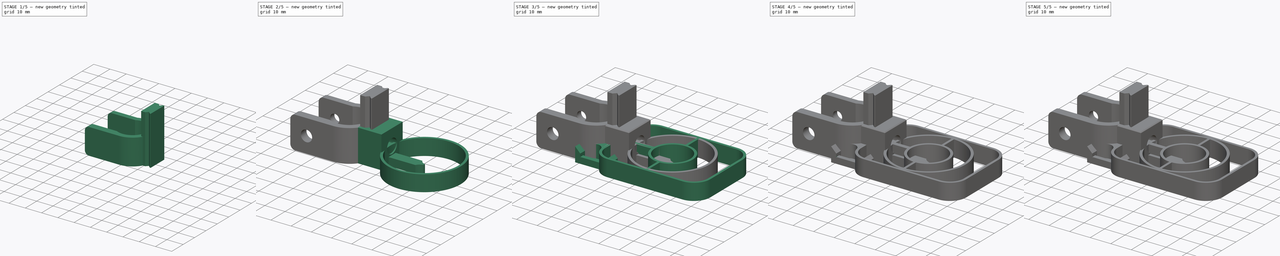
[diagram: build sequence overview — one tinted view per stage of 5, left to right]
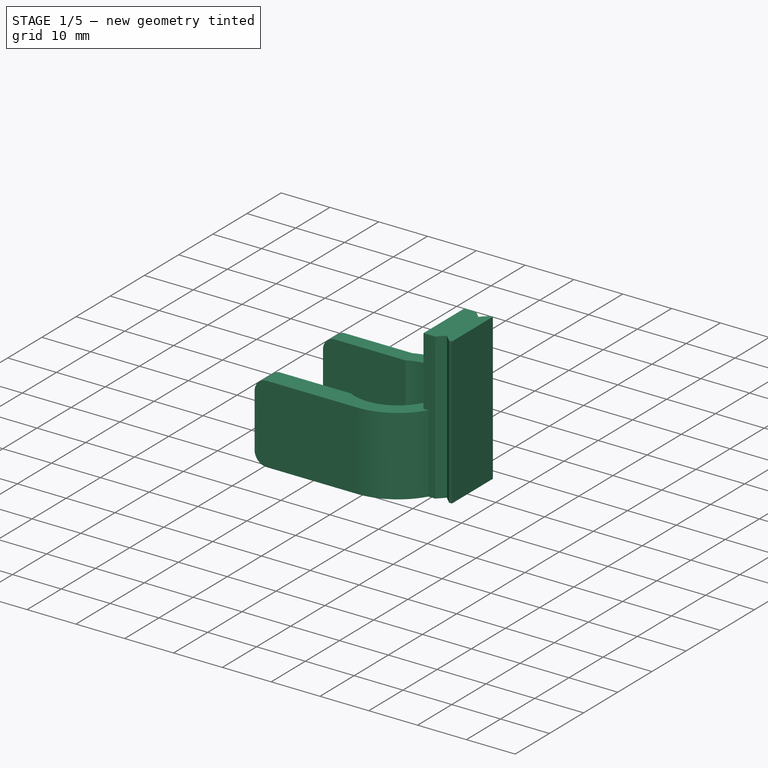
[diagram: stage 1 of 5 — iso view after this stage's code; geometry added in this stage tinted green]
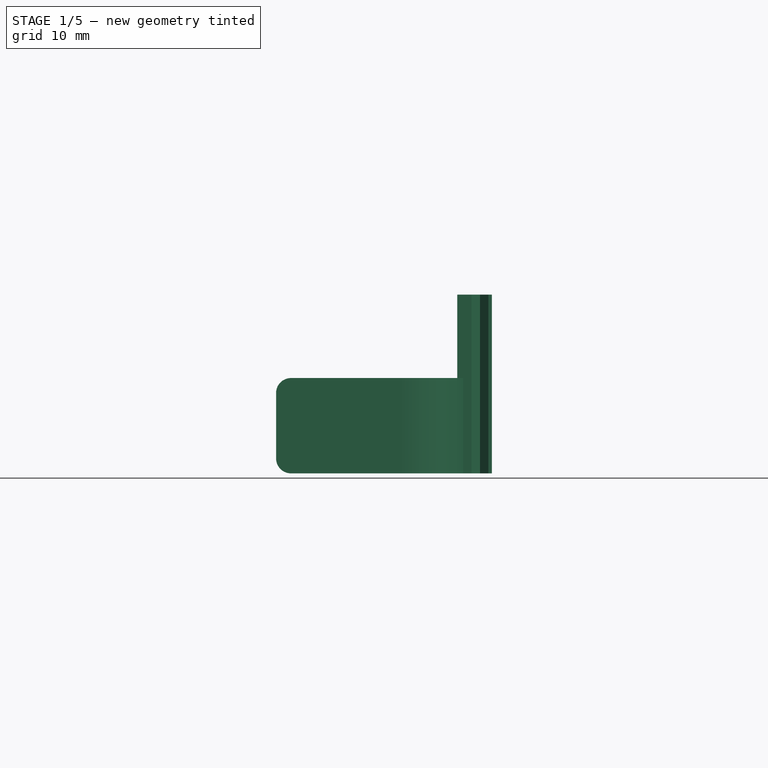
[diagram: stage 1 of 5 — front view after this stage's code; geometry added in this stage tinted green]
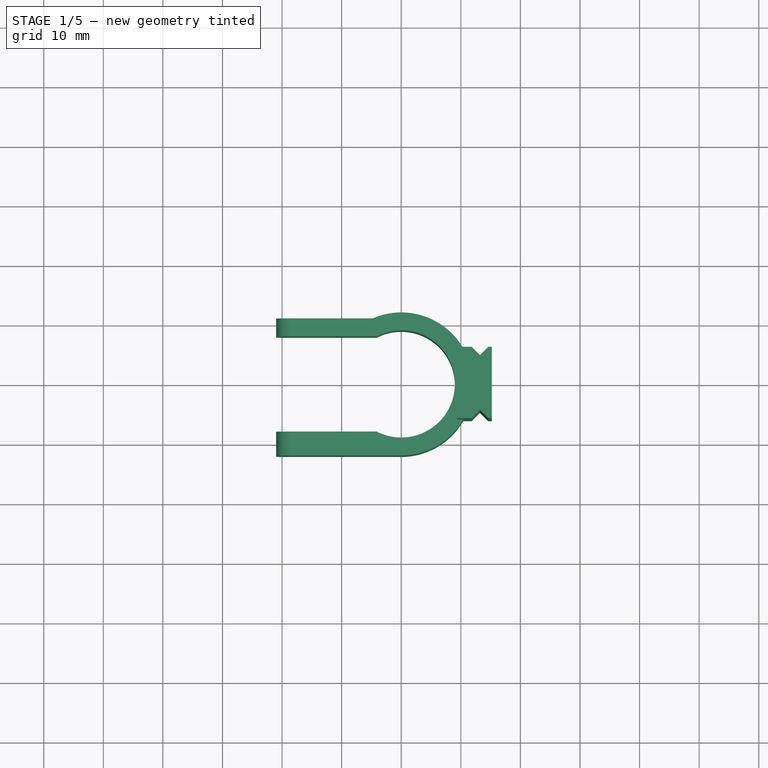
[diagram: stage 1 of 5 — top view after this stage's code; geometry added in this stage tinted green]
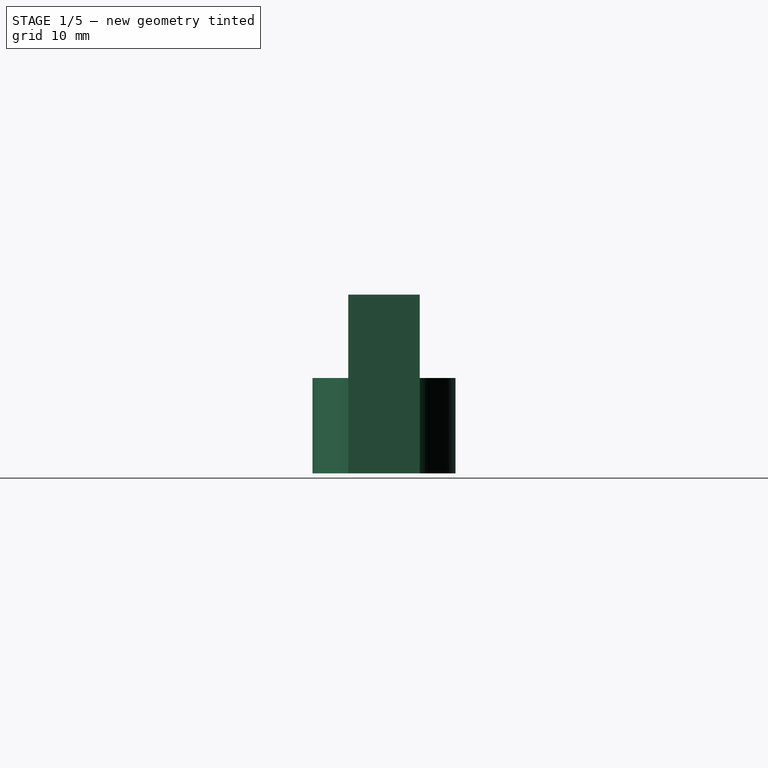
[diagram: stage 1 of 5 — right view after this stage's code; geometry added in this stage tinted green]
FCSTD DOCUMENT  (FreeCAD 0.21RUnknown)
Label: FinderClamp
License: All rights reserved
LicenseURL: http://en.wikipedia.org/wiki/All_rights_reserved
objects: Sketcher::SketchObject×26, PartDesign::Pad×12, PartDesign::Hole×7, PartDesign::Body×7, PartDesign::Pocket×6, PartDesign::Chamfer×5, PartDesign::Fillet×5, PartDesign::Revolution×1
note: 105 computed .brp shape members not serialized (recipe doc carries the construction recipe); baked Part::Feature solids carry a one-line shape summary decoded from their .brp

FEATURE [PartDesign::Body] Body001  label="ClampThreaded"
  Group = -> [Sketch002,Pad001,Sketch003,Sketch004,Pocket,Chamfer,Hole001,Sketch014,Pad002]
  Origin = -> Origin001
  Placement = pos=(20,0,0) rot=(0,0,1;0rad)
  Tip = -> Pad002
FEATURE [Sketcher::SketchObject] Sketch015
  FullyConstrained = true
  MapMode = 5
  Support = -> [XY_Plane003]
  sketch-geometry (24):
    g0: LineSegment StartX=10.3923 StartY=6 StartZ=0 EndX=11.8 EndY=6 EndZ=0
    g1: LineSegment StartX=11.8 StartY=6 StartZ=0 EndX=13.2142 EndY=4.58579 EndZ=0
    g2: LineSegment StartX=13.2142 StartY=4.58579 StartZ=0 EndX=14.6284 EndY=6 EndZ=0
    g3: LineSegment StartX=14.6284 StartY=6 StartZ=0 EndX=15.2142 EndY=6 EndZ=0
    g4: LineSegment StartX=15.2142 StartY=6 StartZ=0 EndX=15.2142 EndY=-6 EndZ=0
    g5: LineSegment StartX=15.2142 StartY=-6 StartZ=0 EndX=14.6284 EndY=-6 EndZ=0
    g6: LineSegment StartX=14.6284 StartY=-6 StartZ=0 EndX=13.2142 EndY=-4.58579 EndZ=0
    g7: LineSegment StartX=13.2142 StartY=-4.58579 StartZ=0 EndX=11.8 EndY=-6 EndZ=0
    g8: LineSegment StartX=11.8 StartY=-6 StartZ=0 EndX=10.3923 EndY=-6 EndZ=0
    g9: Circle CenterX=0 CenterY=0 CenterZ=0 NormalX=0 NormalY=0 NormalZ=1 AngleXU=0 Radius=9
    g10: LineSegment StartX=10.3923 StartY=-6 StartZ=0 EndX=0 EndY=1.8e-15 EndZ=0
    g11: GeomPoint X=7.79423 Y=-4.5 Z=0
    g12: LineSegment StartX=-4.79583 StartY=11 StartZ=0 EndX=-21 EndY=11 EndZ=0
    g13: LineSegment StartX=0 StartY=-12 StartZ=0 EndX=-21 EndY=-12 EndZ=0
    g14: LineSegment StartX=-21 StartY=-12 StartZ=0 EndX=-21 EndY=-8 EndZ=0
    g15: LineSegment StartX=-21 StartY=-8 StartZ=0 EndX=-4.12311 EndY=-8 EndZ=0
    g16: LineSegment StartX=-21 StartY=11 StartZ=0 EndX=-21 EndY=8 EndZ=0
    g17: LineSegment StartX=-21 StartY=8 StartZ=0 EndX=-4.12311 EndY=8 EndZ=0
    g18: ArcOfCircle CenterX=0 CenterY=0 CenterZ=0 NormalX=0 NormalY=0 NormalZ=1 AngleXU=0 Radius=9 StartAngle=4.23651 EndAngle=8.32986
    g19: ArcOfCircle CenterX=0 CenterY=0 CenterZ=0 NormalX=0 NormalY=0 NormalZ=1 AngleXU=0 Radius=12 StartAngle=0.523599 EndAngle=1.98193
    g20: ArcOfCircle CenterX=0 CenterY=0 CenterZ=0 NormalX=0 NormalY=0 NormalZ=1 AngleXU=0 Radius=12 StartAngle=4.71239 EndAngle=5.75959
    g21: GeomPoint X=-9 Y=0 Z=0
    g22: LineSegment StartX=9.4 StartY=6 StartZ=0 EndX=9.4 EndY=-6 EndZ=0
    g23: GeomPoint X=9 Y=0 Z=0
  constraints (67):
    c: Horizontal(g0)
    c: Coincident(g1,g0)
    c: Coincident(g2,g1)
    c: Coincident(g3,g2)
    c: Horizontal(g3)
    c: Coincident(g4,g3)
    c: Coincident(g5,g4)
    c: Horizontal(g5)
    c: Coincident(g6,g5)
    c: Coincident(g7,g6)
    c: Coincident(g8,g7)
    c: Horizontal(g8)
    c: Symmetric(g4,g3,g-1)
    c: DistanceY(g4,g4) = 12
    c: Equal(g6,g7)
    c: Equal(g7,g2)
    c: Equal(g2,g1)
    c: Horizontal(g0,g2)
    c: Horizontal(g7,g5)
    c: Vertical(g1,g6)
    c: DistanceX(g1,g3) = 2
    c: Equal(g5,g3)
    c: Coincident(g9,g-1)
    c: Diameter(g9) = 18
    c: PointOnObject(g11,g10)
    c: PointOnObject(g11,g9)
    c: Distance(g10,g11) = 3
    c: Horizontal(g12)
    c: Horizontal(g13)
    c: Coincident(g14,g13)
    c: Vertical(g14)
    c: Coincident(g15,g14)
    c: Horizontal(g15)
    c: Coincident(g16,g12)
    c: Vertical(g16)
    c: Coincident(g17,g16)
    c: Horizontal(g17)
    c: Vertical(g14,g16)
    c: DistanceY(g14,g16) = 16
    c: DistanceY(g16,g16) = 3
    c: Coincident(g18,g17)
    c: Coincident(g18,g15)
    c: PointOnObject(g15,g9)
    c: Coincident(g18,g9)
    c: Coincident(g19,g18)
    c: Coincident(g19,g12)
    c: Coincident(g20,g18)
    c: Coincident(g20,g13)
    c: Coincident(g20,g8)
    c: Coincident(g0,g19)
    c: Equal(g20,g19)
    c: Coincident(g10,g8)
    c: Perpendicular(g1,g2)
    c: Distance(g2) = 2
    c: PointOnObject(g21,g9)
    c: PointOnObject(g21,g-1)
    c: DistanceX(g16,g21) = 12
    c: Coincident(g10,g18)
    c: DistanceY(g14,g14) = 4
    c: PointOnObject(g13,g-2)
    c: Vertical(g22)
    c: PointOnObject(g22,g8)
    c: PointOnObject(g22,g0)
    c: PointOnObject(g23,g18)
    c: PointOnObject(g23,g-1)
    c: DistanceX(g23,g22) = 0.4
    c: DistanceX(g22,g0) = 2.4
FEATURE [PartDesign::Pad] Pad003
  Direction = (0,0,1)
  Length = 16
  Length2 = 10
  Profile = -> Sketch015
  ReferenceAxis = -> Sketch015 [N_Axis]
  Type = 0
FEATURE [PartDesign::Fillet] Fillet
  Base = -> Pad003 [Edge52,Edge40,Edge39,Edge51]
  BaseFeature = -> Pad003
  Radius = 2.5
  SupportTransform = false
  UseAllEdges = false
FEATURE [Sketcher::SketchObject] Sketch016
  ExternalGeometry = -> [Pad003]
  FullyConstrained = true
  MapMode = 5
  Placement = pos=(0,-12,0) rot=(1,0,0;1.5708rad)
  Support = -> [Pad003]
  sketch-geometry (3):
    g0: Circle CenterX=-13 CenterY=8 CenterZ=0 NormalX=0 NormalY=0 NormalZ=1 AngleXU=0 Radius=2
    g1: LineSegment StartX=-13 StartY=8 StartZ=0 EndX=-13 EndY=4.4e-15 EndZ=0
    g2: LineSegment StartX=-13 StartY=8 StartZ=0 EndX=-13 EndY=16 EndZ=0
  constraints (9):
    c: Diameter(g0) = 4
    c: DistanceX(g-3,g0) = 8
    c: Coincident(g1,g0)
    c: Vertical(g1)
    c: Coincident(g2,g0)
    c: Vertical(g2)
    c: Equal(g2,g1)
    c: Horizontal(g2,g-3)
    c: Horizontal(g-3,g1)
FEATURE [PartDesign::Hole] Hole002
  BaseFeature = -> Fillet
  CustomThreadClearance = 0
  Depth = 95.9893
  DepthType = 1
  Diameter = 4.5
  DrillForDepth = false
  DrillPoint = 1
  DrillPointAngle = 118
  HoleCutCountersinkAngle = 90
  HoleCutCustomValues = false
  HoleCutDepth = 4.4
  HoleCutDiameter = 5.6
  HoleCutType = 1
  ModelThread = false
  Profile = -> Sketch016
  Tapered = false
  TaperedAngle = 90
  ThreadClass = 0
  ThreadDepth = 95.9893
  ThreadDepthType = 0
  ThreadDirection = 0
  ThreadFit = 0
  ThreadSize = 11
  ThreadType = 1
  Threaded = false
  UseCustomThreadClearance = false
  expr: HoleCutDiameter = 5.6
FEATURE [Sketcher::SketchObject] Sketch023
  FullyConstrained = true
  MapMode = 5
  Support = -> [XY_Plane006]
  sketch-geometry (12):
    g0: Circle CenterX=0 CenterY=0 CenterZ=0 NormalX=0 NormalY=0 NormalZ=1 AngleXU=0 Radius=9
    g1: LineSegment StartX=-4.79583 StartY=11 StartZ=0 EndX=0 EndY=0 EndZ=0
    g2: GeomPoint X=-3.59687 Y=8.25 Z=0
    g3: LineSegment StartX=-4.79583 StartY=11 StartZ=0 EndX=-21 EndY=11 EndZ=0
    g4: LineSegment StartX=0 StartY=-12 StartZ=0 EndX=-21 EndY=-12 EndZ=0
    g5: LineSegment StartX=-21 StartY=-12 StartZ=0 EndX=-21 EndY=-8 EndZ=0
    g6: LineSegment StartX=-21 StartY=-8 StartZ=0 EndX=-4.12311 EndY=-8 EndZ=0
    g7: LineSegment StartX=-21 StartY=11 StartZ=0 EndX=-21 EndY=8 EndZ=0
    g8: LineSegment StartX=-21 StartY=8 StartZ=0 EndX=-4.12311 EndY=8 EndZ=0
    g9: ArcOfCircle CenterX=0 CenterY=0 CenterZ=0 NormalX=0 NormalY=0 NormalZ=1 AngleXU=0 Radius=9 StartAngle=4.23651 EndAngle=8.32986
    g10: ArcOfCircle CenterX=0 CenterY=0 CenterZ=0 NormalX=0 NormalY=0 NormalZ=1 AngleXU=0 Radius=12 StartAngle=4.71239 EndAngle=8.26512
    g11: GeomPoint X=-9 Y=0 Z=0
  constraints (32):
    c: Coincident(g0,g-1)
    c: Diameter(g0) = 18
    c: PointOnObject(g2,g1)
    c: PointOnObject(g2,g0)
    c: Distance(g1,g2) = 3
    c: Horizontal(g3)
    c: Horizontal(g4)
    c: Coincident(g5,g4)
    c: Vertical(g5)
    c: Coincident(g6,g5)
    c: Horizontal(g6)
    c: Coincident(g7,g3)
    c: Vertical(g7)
    c: Coincident(g8,g7)
    c: Horizontal(g8)
    c: Vertical(g5,g7)
    c: DistanceY(g5,g7) = 16
    c: DistanceY(g7,g7) = 3
    c: Coincident(g9,g8)
    c: Coincident(g9,g6)
    c: PointOnObject(g6,g0)
    c: Coincident(g9,g0)
    c: Coincident(g10,g9)
    c: Coincident(g10,g4)
    c: PointOnObject(g11,g0)
    c: PointOnObject(g11,g-1)
    c: DistanceX(g7,g11) = 12
    c: Coincident(g1,g9)
    c: DistanceY(g5,g5) = 4
    c: Coincident(g3,g10)
    c: Coincident(g1,g3)
    c: PointOnObject(g4,g-2)
FEATURE [PartDesign::Pad] Pad006
  Direction = (0,0,1)
  Length = 16
  Length2 = 10
  Profile = -> Sketch023
  ReferenceAxis = -> Sketch023 [N_Axis]
  Type = 0
FEATURE [PartDesign::Fillet] Fillet005
  Base = -> Pad006 [Edge9,Edge10,Edge22,Edge21]
  BaseFeature = -> Pad006
  Radius = 2.5
  SupportTransform = false
  UseAllEdges = false
FEATURE [PartDesign::Body] Body005  label="FinderSightFore"
  Group = -> [Sketch021,Pad005,Fillet004,Sketch022,Hole005,Sketch025,Pad007,Sketch026,Pad008]
  Origin = -> Origin005
  Tip = -> Pad008
FEATURE [PartDesign::Chamfer] Chamfer005
  Angle = 45
  Base = -> Hole002 [Edge18,Edge34,Edge20,Edge16,Edge26,Edge24,Edge15,Edge4,Edge42,Edge31]
  BaseFeature = -> Hole002
  ChamferType = 0
  FlipDirection = false
  Size = 0.4
  Size2 = 1
  SupportTransform = false
  UseAllEdges = false
FEATURE [PartDesign::Body] Body006  label="FinderSightAft"
  Group = -> [Sketch023,Pad006,Fillet005,Sketch024,Hole006,Sketch027,Sketch028,Pad009,Pad010]
  Origin = -> Origin006
  Tip = -> Pad010
FEATURE [Sketcher::SketchObject] Sketch033
  ExternalGeometry = -> [Pad003]
  FullyConstrained = true
  MapMode = 5
  Placement = pos=(0,0,16) rot=(0,0,1;0rad)
  Support = -> [Pad003]
  sketch-geometry (10):
    g0: LineSegment StartX=15.2142 StartY=6 StartZ=0 EndX=15.2142 EndY=-6 EndZ=0
    g1: LineSegment StartX=11.8 StartY=6 StartZ=0 EndX=13.2142 EndY=4.58579 EndZ=0
    g2: LineSegment StartX=13.2142 StartY=4.58579 StartZ=0 EndX=14.6284 EndY=6 EndZ=0
    g3: LineSegment StartX=11.8 StartY=-6 StartZ=0 EndX=13.2142 EndY=-4.58579 EndZ=0
    g4: LineSegment StartX=13.2142 StartY=-4.58579 StartZ=0 EndX=14.6284 EndY=-6 EndZ=0
    g5: LineSegment StartX=14.6284 StartY=-6 StartZ=0 EndX=15.2142 EndY=-6 EndZ=0
    g6: LineSegment StartX=14.6284 StartY=6 StartZ=0 EndX=15.2142 EndY=6 EndZ=0
    g7: LineSegment StartX=11.8 StartY=6 StartZ=0 EndX=9.4 EndY=6 EndZ=0
    g8: LineSegment StartX=9.4 StartY=6 StartZ=0 EndX=9.4 EndY=-6 EndZ=0
    g9: LineSegment StartX=9.4 StartY=-6 StartZ=0 EndX=11.8 EndY=-6 EndZ=0
  constraints (24):
    c: Coincident(g0,g-3)
    c: Coincident(g0,g-3)
    c: Coincident(g1,g-4)
    c: Coincident(g1,g-4)
    c: Coincident(g2,g1)
    c: Coincident(g3,g-5)
    c: Coincident(g3,g-5)
    c: Coincident(g4,g3)
    c: Coincident(g5,g4)
    c: Coincident(g5,g0)
    c: Coincident(g6,g2)
    c: Coincident(g6,g0)
    c: Coincident(g7,g1)
    c: Horizontal(g7)
    c: Coincident(g8,g7)
    c: Vertical(g8)
    c: Coincident(g9,g8)
    c: Coincident(g9,g3)
    c: Horizontal(g9)
    c: Perpendicular(g1,g2)
    c: Perpendicular(g4,g3)
    c: Horizontal(g5)
    c: Horizontal(g6)
    c: DistanceX(g7,g7) = 2.4
FEATURE [PartDesign::Pad] Pad014
  BaseFeature = -> Chamfer005
  Direction = (0,0,1)
  Length = 14
  Length2 = 10
  Profile = -> Sketch033
  ReferenceAxis = -> Sketch033 [N_Axis]
  Type = 0
FEATURE [PartDesign::Body] Body003  label="DovetailSide"
  Group = -> [Sketch015,Pad003,Fillet,Sketch016,Hole002,Chamfer005,Sketch033,Pad014]
  Origin = -> Origin003
  Tip = -> Pad014
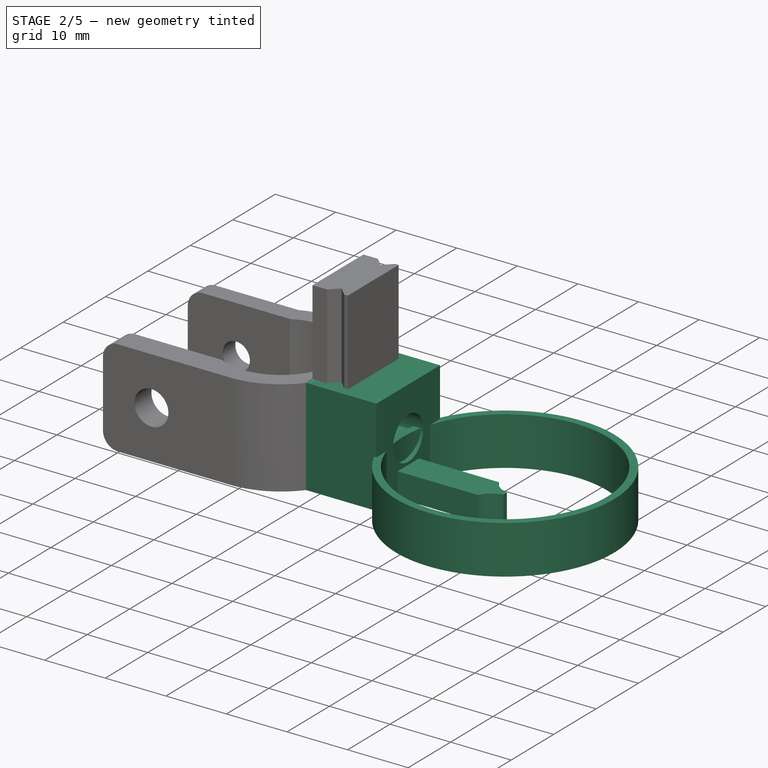
[diagram: stage 2 of 5 — iso view after this stage's code; geometry added in this stage tinted green]
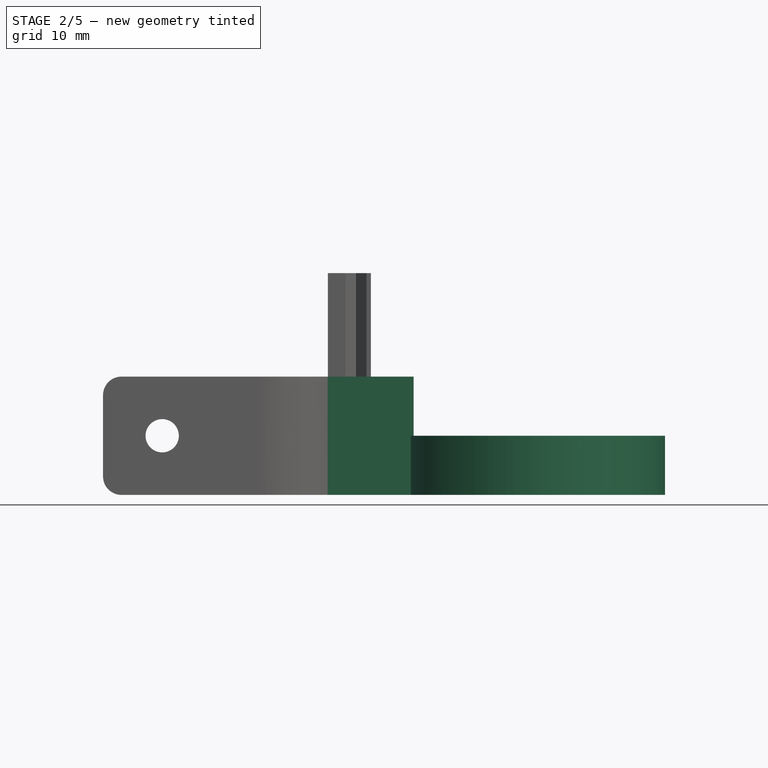
[diagram: stage 2 of 5 — front view after this stage's code; geometry added in this stage tinted green]
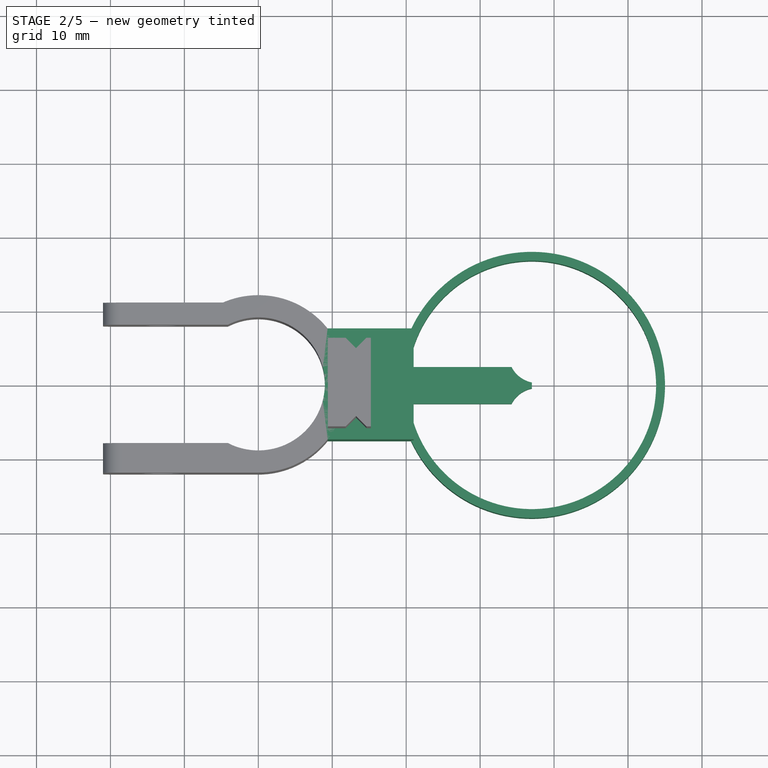
[diagram: stage 2 of 5 — top view after this stage's code; geometry added in this stage tinted green]
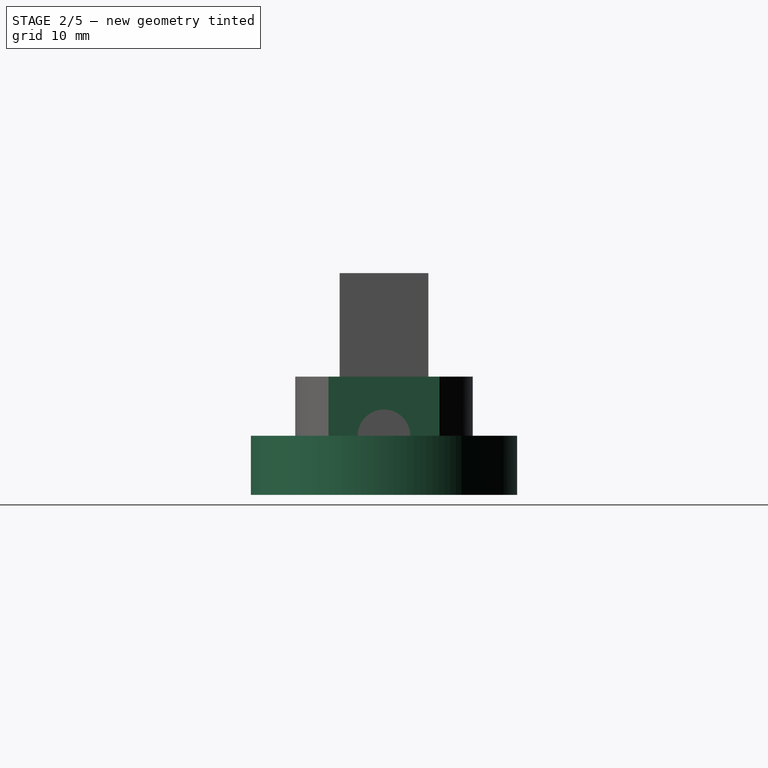
[diagram: stage 2 of 5 — right view after this stage's code; geometry added in this stage tinted green]
FEATURE [Sketcher::SketchObject] Sketch017
  FullyConstrained = true
  MapMode = 5
  Support = -> [XY_Plane004]
  sketch-geometry (18):
    g0: LineSegment StartX=9.3675 StartY=7.5 StartZ=0 EndX=21 EndY=7.5 EndZ=0
    g1: LineSegment StartX=21 StartY=7.5 StartZ=0 EndX=21 EndY=-7.5 EndZ=0
    g2: LineSegment StartX=21 StartY=-7.5 StartZ=0 EndX=9.3675 EndY=-7.5 EndZ=0
    g3: Circle CenterX=0 CenterY=0 CenterZ=0 NormalX=0 NormalY=0 NormalZ=1 AngleXU=0 Radius=9
    g4: LineSegment StartX=9.3675 StartY=-7.5 StartZ=0 EndX=0 EndY=0 EndZ=0
    g5: GeomPoint X=7.02562 Y=-5.625 Z=0
    g6: LineSegment StartX=-4.79583 StartY=11 StartZ=0 EndX=-21 EndY=11 EndZ=0
    g7: LineSegment StartX=-7.68e-14 StartY=-12 StartZ=0 EndX=-21 EndY=-12 EndZ=0
    g8: LineSegment StartX=-21 StartY=-12 StartZ=0 EndX=-21 EndY=-8 EndZ=0
    g9: LineSegment StartX=-21 StartY=-8 StartZ=0 EndX=-4.12311 EndY=-8 EndZ=0
    g10: LineSegment StartX=-21 StartY=11 StartZ=0 EndX=-21 EndY=8 EndZ=0
    g11: LineSegment StartX=-21 StartY=8 StartZ=0 EndX=-4.12311 EndY=8 EndZ=0
    g12: ArcOfCircle CenterX=0 CenterY=0 CenterZ=0 NormalX=0 NormalY=0 NormalZ=1 AngleXU=0 Radius=9 StartAngle=4.23651 EndAngle=8.32986
    g13: ArcOfCircle CenterX=0 CenterY=0 CenterZ=0 NormalX=0 NormalY=0 NormalZ=1 AngleXU=0 Radius=12 StartAngle=0.675132 EndAngle=1.98193
    g14: ArcOfCircle CenterX=0 CenterY=0 CenterZ=0 NormalX=0 NormalY=0 NormalZ=1 AngleXU=0 Radius=12 StartAngle=4.71239 EndAngle=5.60805
    g15: GeomPoint X=-9 Y=0 Z=0
    g16: GeomPoint X=9 Y=0 Z=0
    g17: GeomPoint X=21 Y=0 Z=0
  constraints (47):
    c: Horizontal(g0)
    c: Horizontal(g2)
    c: Symmetric(g1,g1,g-1)
    c: DistanceY(g1,g1) = 15
    c: Coincident(g3,g-1)
    c: Diameter(g3) = 18
    c: PointOnObject(g5,g4)
    c: PointOnObject(g5,g3)
    c: Distance(g4,g5) = 3
    c: Horizontal(g6)
    c: Horizontal(g7)
    c: Coincident(g8,g7)
    c: Vertical(g8)
    c: Coincident(g9,g8)
    c: Horizontal(g9)
    c: Coincident(g10,g6)
    c: Vertical(g10)
    c: Coincident(g11,g10)
    c: Horizontal(g11)
    c: Vertical(g8,g10)
    c: DistanceY(g8,g10) = 16
    c: DistanceY(g10,g10) = 3
    c: Coincident(g12,g11)
    c: Coincident(g12,g9)
    c: PointOnObject(g9,g3)
    c: Coincident(g12,g3)
    c: Coincident(g13,g12)
    c: Coincident(g13,g6)
    c: Coincident(g14,g12)
    c: Coincident(g14,g7)
    c: Coincident(g14,g2)
    c: Coincident(g0,g13)
    c: Equal(g14,g13)
    c: Coincident(g4,g2)
    c: PointOnObject(g15,g3)
    c: PointOnObject(g15,g-1)
    c: DistanceX(g10,g15) = 12
    c: Coincident(g4,g12)
    c: DistanceY(g8,g8) = 4
    c: PointOnObject(g7,g-2)
    c: Coincident(g2,g1)
    c: Coincident(g0,g1)
    c: PointOnObject(g16,g12)
    c: PointOnObject(g17,g1)
    c: PointOnObject(g17,g-1)
    c: PointOnObject(g16,g-1)
    c: DistanceX(g16,g17) = 12
FEATURE [PartDesign::Pad] Pad004
  Direction = (0,0,1)
  Length = 16
  Length2 = 10
  Profile = -> Sketch017
  ReferenceAxis = -> Sketch017 [N_Axis]
  Type = 0
FEATURE [PartDesign::Fillet] Fillet003
  Base = -> Pad004 [Edge22,Edge34,Edge33,Edge21]
  BaseFeature = -> Pad004
  Radius = 2.5
  SupportTransform = false
  UseAllEdges = false
FEATURE [Sketcher::SketchObject] Sketch019
  ExternalGeometry = -> [Fillet003]
  FullyConstrained = true
  MapMode = 5
  Placement = pos=(0,0,0) rot=(0.57735,0.57735,0.57735;2.0944rad)
  Support = -> [YZ_Plane004]
  sketch-geometry (3):
    g0: Circle CenterX=0 CenterY=8 CenterZ=0 NormalX=0 NormalY=0 NormalZ=1 AngleXU=0 Radius=3
    g1: LineSegment StartX=0 StartY=8 StartZ=0 EndX=0 EndY=16 EndZ=0
    g2: LineSegment StartX=0 StartY=8 StartZ=0 EndX=0 EndY=0 EndZ=0
  constraints (9):
    c: PointOnObject(g0,g-2)
    c: Diameter(g0) = 6
    c: Coincident(g1,g0)
    c: PointOnObject(g1,g-3)
    c: Coincident(g2,g0)
    c: PointOnObject(g2,g-1)
    c: Equal(g2,g1)
    c: Vertical(g1)
    c: Vertical(g2)
FEATURE [Sketcher::SketchObject] Sketch020
  ExternalGeometry = -> [Pad004]
  FullyConstrained = true
  MapMode = 5
  Placement = pos=(0,-12,0) rot=(1,0,0;1.5708rad)
  Support = -> [Pad004]
  sketch-geometry (3):
    g0: Circle CenterX=-13 CenterY=8 CenterZ=0 NormalX=0 NormalY=0 NormalZ=1 AngleXU=0 Radius=2
    g1: LineSegment StartX=-13 StartY=8 StartZ=0 EndX=-13 EndY=16 EndZ=0
    g2: LineSegment StartX=-13 StartY=8 StartZ=0 EndX=-13 EndY=0 EndZ=0
  constraints (9):
    c: Coincident(g1,g0)
    c: Vertical(g1)
    c: Coincident(g2,g0)
    c: Vertical(g2)
    c: Horizontal(g2,g-3)
    c: Horizontal(g1,g-3)
    c: DistanceX(g-3,g1) = 8
    c: Diameter(g0) = 4
    c: Equal(g1,g2)
FEATURE [PartDesign::Hole] Hole003
  BaseFeature = -> Fillet003
  CustomThreadClearance = 0
  Depth = 102.913
  DepthType = 1
  Diameter = 4.5
  DrillForDepth = false
  DrillPoint = 1
  DrillPointAngle = 118
  HoleCutCountersinkAngle = 90
  HoleCutCustomValues = false
  HoleCutDepth = 4.4
  HoleCutDiameter = 5.6
  HoleCutType = 1
  ModelThread = false
  Profile = -> Sketch020
  Tapered = false
  TaperedAngle = 90
  ThreadClass = 0
  ThreadDepth = 102.913
  ThreadDepthType = 0
  ThreadDirection = 0
  ThreadFit = 0
  ThreadSize = 11
  ThreadType = 1
  Threaded = false
  UseCustomThreadClearance = false
FEATURE [PartDesign::Hole] Hole004
  BaseFeature = -> Hole003
  CustomThreadClearance = 0
  Depth = 102.913
  DepthType = 1
  Diameter = 7.1
  DrillForDepth = false
  DrillPoint = 1
  DrillPointAngle = 118
  HoleCutCountersinkAngle = 90
  HoleCutCustomValues = false
  HoleCutDepth = 15.89
  HoleCutDiameter = 11.36
  HoleCutType = 1
  ModelThread = false
  Profile = -> Sketch019
  Reversed = true
  Tapered = false
  TaperedAngle = 90
  ThreadClass = 0
  ThreadDepth = 102.913
  ThreadDepthType = 0
  ThreadDirection = 0
  ThreadFit = 0
  ThreadSize = 9
  ThreadType = 3
  Threaded = false
  UseCustomThreadClearance = false
FEATURE [Sketcher::SketchObject] Sketch024
  ExternalGeometry = -> [Pad006]
  FullyConstrained = true
  MapMode = 5
  Placement = pos=(0,-12,0) rot=(1,0,0;1.5708rad)
  Support = -> [Pad006]
  sketch-geometry (3):
    g0: Circle CenterX=-13 CenterY=8 CenterZ=0 NormalX=0 NormalY=0 NormalZ=1 AngleXU=0 Radius=2
    g1: LineSegment StartX=-13 StartY=8 StartZ=0 EndX=-13 EndY=0 EndZ=0
    g2: LineSegment StartX=-13 StartY=8 StartZ=0 EndX=-13 EndY=16 EndZ=0
  constraints (9):
    c: Diameter(g0) = 4
    c: Coincident(g1,g0)
    c: Vertical(g1)
    c: Coincident(g2,g0)
    c: Vertical(g2)
    c: Equal(g2,g1)
    c: Horizontal(g2,g-3)
    c: Horizontal(g1,g-3)
    c: DistanceX(g-3,g2) = 8
FEATURE [PartDesign::Hole] Hole006
  BaseFeature = -> Fillet005
  CustomThreadClearance = 0
  Depth = 91.7911
  DepthType = 1
  Diameter = 4.5
  DrillForDepth = false
  DrillPoint = 1
  DrillPointAngle = 118
  HoleCutCountersinkAngle = 90
  HoleCutCustomValues = false
  HoleCutDepth = 4.4
  HoleCutDiameter = 5.6
  HoleCutType = 1
  ModelThread = false
  Profile = -> Sketch024
  Tapered = false
  TaperedAngle = 90
  ThreadClass = 0
  ThreadDepth = 91.7911
  ThreadDepthType = 0
  ThreadDirection = 0
  ThreadFit = 0
  ThreadSize = 11
  ThreadType = 1
  Threaded = false
  UseCustomThreadClearance = false
FEATURE [PartDesign::Body] Body004  label="CameraSide"
  Group = -> [Sketch017,Pad004,Fillet003,Sketch019,Sketch020,Hole003,Hole004,Chamfer006]
  Origin = -> Origin004
  Tip = -> Chamfer006
FEATURE [Sketcher::SketchObject] Sketch028
  ExternalGeometry = -> [Sketch023]
  FullyConstrained = true
  MapMode = 5
  Support = -> [XY_Plane006]
  sketch-geometry (12):
    g0: LineSegment StartX=14.6202 StartY=2.5 StartZ=0 EndX=34.2376 EndY=2.5 EndZ=0
    g1: LineSegment StartX=14.6202 StartY=-2.5 StartZ=0 EndX=34.2376 EndY=-2.5 EndZ=0
    g2: LineSegment StartX=37 StartY=0.4 StartZ=0 EndX=37 EndY=-0.4 EndZ=0
    g3: ArcOfCircle CenterX=37.8 CenterY=4.31918 CenterZ=0 NormalX=0 NormalY=0 NormalZ=1 AngleXU=0 Radius=4 StartAngle=3.61374 EndAngle=4.51103
    g4: ArcOfCircle CenterX=37.8 CenterY=-4.31918 CenterZ=0 NormalX=0 NormalY=0 NormalZ=1 AngleXU=0 Radius=4 StartAngle=1.77215 EndAngle=2.66945
    g5: ArcOfCircle CenterX=14.6202 CenterY=6.5 CenterZ=0 NormalX=0 NormalY=0 NormalZ=1 AngleXU=0 Radius=4 StartAngle=3.55994 EndAngle=4.71239
    g6: ArcOfCircle CenterX=14.6202 CenterY=-6.5 CenterZ=0 NormalX=0 NormalY=0 NormalZ=1 AngleXU=0 Radius=4 StartAngle=1.5708 EndAngle=2.72325
    g7: LineSegment StartX=0 StartY=0 StartZ=0 EndX=14.6202 EndY=6.5 EndZ=0
    g8: LineSegment StartX=0 StartY=0 StartZ=0 EndX=14.6202 EndY=-6.5 EndZ=0
    g9: LineSegment StartX=14.6202 StartY=6.5 StartZ=0 EndX=14.6202 EndY=-6.5 EndZ=0
    g10: LineSegment StartX=10.9651 StartY=4.875 StartZ=0 EndX=10.9651 EndY=-4.875 EndZ=0
    g11: LineSegment StartX=37.8 StartY=4.31918 StartZ=0 EndX=37.8 EndY=-4.31918 EndZ=0
  constraints (35):
    c: Horizontal(g0)
    c: Horizontal(g1)
    c: Coincident(g3,g0)
    c: Coincident(g3,g2)
    c: Coincident(g4,g1)
    c: Coincident(g4,g2)
    c: Equal(g4,g3)
    c: Symmetric(g2,g2,g-1)
    c: DistanceY(g2,g2) = 0.8
    c: DistanceX(g2) = 37
    c: Radius(g4) = 4
    c: DistanceY(g1,g0) = 5
    c: Coincident(g5,g0)
    c: Coincident(g1,g6)
    c: Equal(g5,g6)
    c: Radius(g5) = 4
    c: Coincident(g7,g-3)
    c: Coincident(g7,g5)
    c: Coincident(g8,g7)
    c: Coincident(g8,g6)
    c: PointOnObject(g6,g8)
    c: PointOnObject(g5,g7)
    c: PointOnObject(g5,g-3)
    c: PointOnObject(g6,g-3)
    c: Coincident(g9,g5)
    c: Coincident(g9,g6)
    c: PointOnObject(g0,g9)
    c: PointOnObject(g1,g9)
    c: Vertical(g9)
    c: Coincident(g10,g5)
    c: Coincident(g10,g6)
    c: Coincident(g11,g3)
    c: Coincident(g11,g4)
    c: Vertical(g11)
    c: DistanceX(g2,g3) = 0.8
FEATURE [Sketcher::SketchObject] Sketch027
  ExternalGeometry = -> [Sketch028]
  FullyConstrained = true
  MapMode = 5
  Support = -> [XY_Plane006]
  sketch-geometry (9):
    g0: Circle CenterX=37 CenterY=0 CenterZ=0 NormalX=0 NormalY=0 NormalZ=1 AngleXU=0 Radius=16.8
    g1: ArcOfCircle CenterX=37 CenterY=0 CenterZ=0 NormalX=0 NormalY=0 NormalZ=1 AngleXU=0 Radius=18 StartAngle=3.28093 EndAngle=9.28544
    g2: LineSegment StartX=19.1745 StartY=2.5 StartZ=0 EndX=14.6202 EndY=2.5 EndZ=0
    g3: LineSegment StartX=19.1745 StartY=-2.5 StartZ=0 EndX=14.6202 EndY=-2.5 EndZ=0
    g4: LineSegment StartX=10.9651 StartY=4.875 StartZ=0 EndX=10.9651 EndY=-4.875 EndZ=0
    g5: ArcOfCircle CenterX=14.6202 CenterY=-6.5 CenterZ=0 NormalX=0 NormalY=0 NormalZ=1 AngleXU=0 Radius=4 StartAngle=1.5708 EndAngle=2.72325
    g6: ArcOfCircle CenterX=14.6202 CenterY=6.5 CenterZ=0 NormalX=0 NormalY=0 NormalZ=1 AngleXU=0 Radius=4 StartAngle=3.55994 EndAngle=4.71239
    g7: LineSegment StartX=19.1745 StartY=2.5 StartZ=0 EndX=37 EndY=0 EndZ=0
    g8: GeomPoint X=20.3628 Y=2.33333 Z=0
  constraints (21):
    c: PointOnObject(g0,g-1)
    c: DistanceX(g0) = 37
    c: Coincident(g1,g0)
    c: Coincident(g2,g1)
    c: Horizontal(g2)
    c: Coincident(g3,g1)
    c: Horizontal(g3)
    c: Coincident(g4,g-4)
    c: Coincident(g4,g-5)
    c: Coincident(g5,g-5)
    c: Coincident(g5,g4)
    c: Coincident(g6,g-4)
    c: Coincident(g6,g4)
    c: Tangent(g6,g2) = 1.5708
    c: Tangent(g5,g3) = -1.5708
    c: Diameter(g1) = 36
    c: Coincident(g7,g1)
    c: Coincident(g7,g0)
    c: PointOnObject(g8,g7)
    c: PointOnObject(g8,g0)
    c: Distance(g8,g1) = 1.2
FEATURE [PartDesign::Pad] Pad009
  BaseFeature = -> Hole006
  Direction = (0,0,1)
  Length = 4
  Length2 = 10
  Profile = -> Sketch028
  ReferenceAxis = -> Sketch028 [N_Axis]
  Type = 0
FEATURE [PartDesign::Pad] Pad010
  BaseFeature = -> Pad009
  Direction = (0,0,1)
  Length = 8
  Length2 = 10
  Profile = -> Sketch027
  ReferenceAxis = -> Sketch027 [N_Axis]
  Type = 0
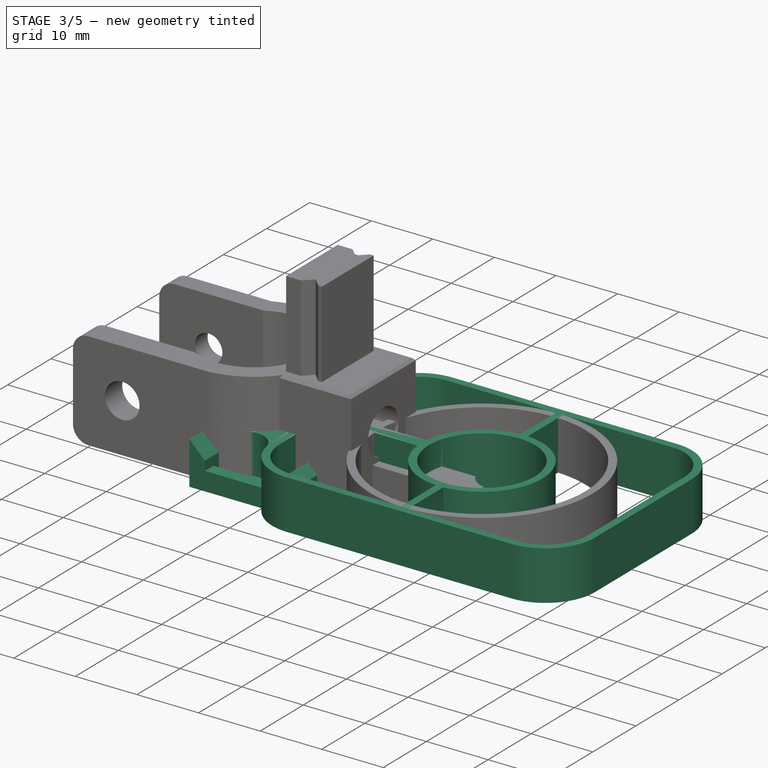
[diagram: stage 3 of 5 — iso view after this stage's code; geometry added in this stage tinted green]
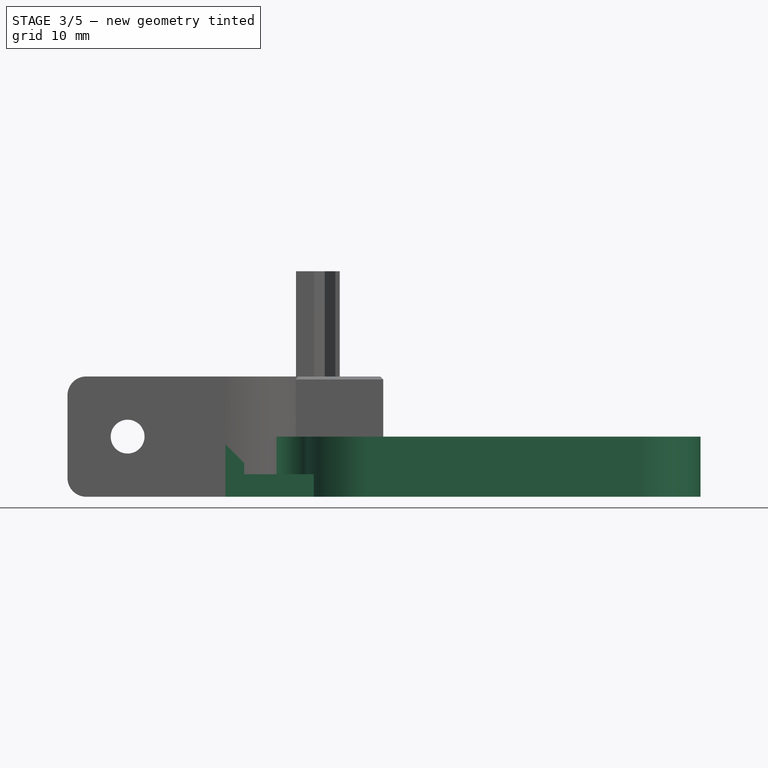
[diagram: stage 3 of 5 — front view after this stage's code; geometry added in this stage tinted green]
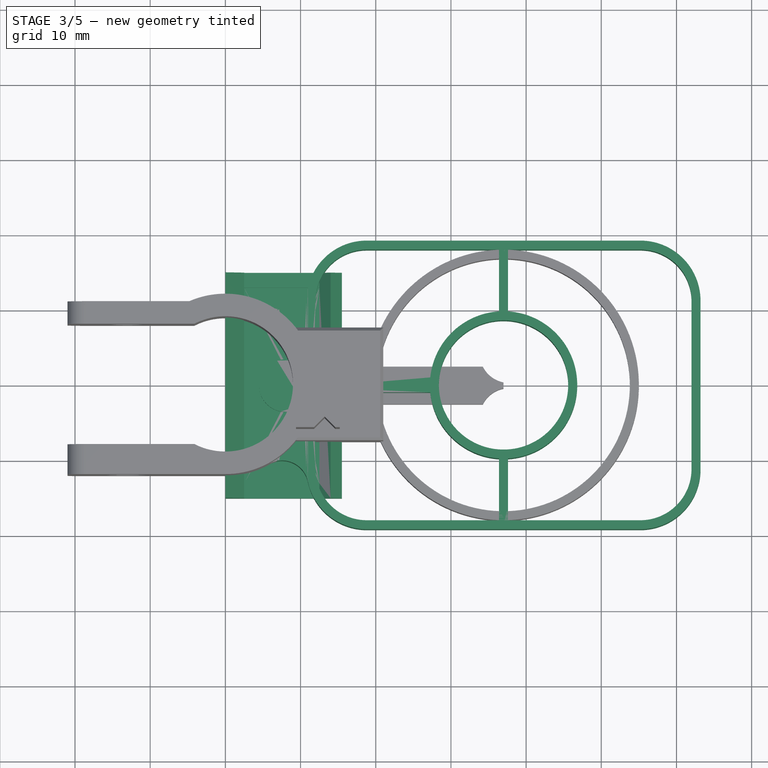
[diagram: stage 3 of 5 — top view after this stage's code; geometry added in this stage tinted green]
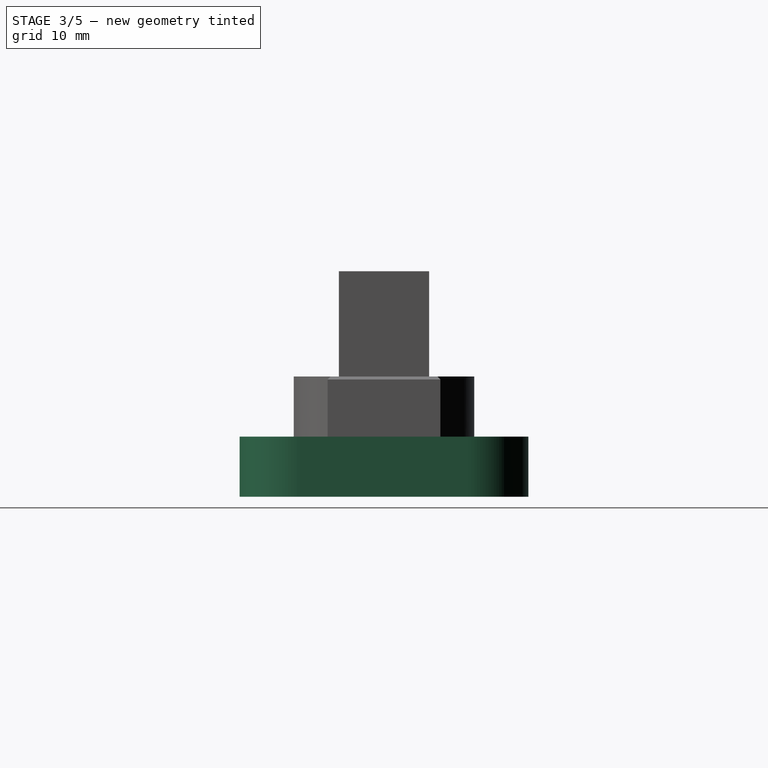
[diagram: stage 3 of 5 — right view after this stage's code; geometry added in this stage tinted green]
FEATURE [Sketcher::SketchObject] Sketch002
  FullyConstrained = true
  MapMode = 5
  Placement = pos=(0,0,0) rot=(1,0,0;1.5708rad)
  Support = -> [XZ_Plane001]
  sketch-geometry (8):
    g0: LineSegment StartX=0 StartY=7 StartZ=0 EndX=0 EndY=0 EndZ=0
    g1: LineSegment StartX=0 StartY=0 StartZ=0 EndX=15.5 EndY=0 EndZ=0
    g2: LineSegment StartX=15.5 StartY=0 StartZ=0 EndX=15.5 EndY=3 EndZ=0
    g3: LineSegment StartX=15.5 StartY=3 StartZ=0 EndX=14 EndY=4.5 EndZ=0
    g4: LineSegment StartX=14 StartY=4.5 StartZ=0 EndX=12.5 EndY=3 EndZ=0
    g5: LineSegment StartX=12.5 StartY=3 StartZ=0 EndX=2.5 EndY=3 EndZ=0
    g6: LineSegment StartX=2.5 StartY=3 StartZ=0 EndX=2.5 EndY=4.5 EndZ=0
    g7: LineSegment StartX=2.5 StartY=4.5 StartZ=0 EndX=0 EndY=7 EndZ=0
  constraints (23):
    c: PointOnObject(g0,g-2)
    c: Coincident(g0,g-1)
    c: Coincident(g1,g0)
    c: Horizontal(g1)
    c: Coincident(g2,g1)
    c: Vertical(g2)
    c: Coincident(g3,g2)
    c: Coincident(g4,g3)
    c: Coincident(g5,g4)
    c: Horizontal(g5)
    c: Coincident(g6,g5)
    c: Vertical(g6)
    c: Coincident(g7,g6)
    c: Coincident(g7,g0)
    c: DistanceX(g3) = 14
    c: DistanceY(g2,g2) = 3
    c: Perpendicular(g3,g4)
    c: Angle(g3,g2) = 2.35619
    c: DistanceY(g2,g3) = 1.5
    c: PointOnObject(g2,g5)
    c: DistanceX(g5) = 2.5
    c: Angle(g0,g7) = 0.785398
    c: DistanceY(g6,g6) = 1.5
FEATURE [PartDesign::Pad] Pad001
  Direction = (0,-1,-2e-16)
  Length = 30
  Length2 = 10
  Midplane = true
  Placement = pos=(0,0,0) rot=(1,0,0;1.5708rad)
  Profile = -> Sketch002
  ReferenceAxis = -> Sketch002 [N_Axis]
  Type = 0
FEATURE [Sketcher::SketchObject] Sketch003
  AttachmentOffset = pos=(0,0,3) rot=(0,0,1;0rad)
  FullyConstrained = true
  MapMode = 5
  Placement = pos=(0,0,3) rot=(0,0,1;0rad)
  Support = -> [XY_Plane001]
  sketch-geometry (1):
    g0: Circle CenterX=8 CenterY=0 CenterZ=0 NormalX=0 NormalY=0 NormalZ=1 AngleXU=0 Radius=2
  constraints (3):
    c: PointOnObject(g0,g-1)
    c: DistanceX(g0) = 8
    c: Diameter(g0) = 4
FEATURE [Sketcher::SketchObject] Sketch004
  ExternalGeometry = -> [Pad001]
  FullyConstrained = true
  MapMode = 5
  Placement = pos=(0,0,3) rot=(0,0,1;3.14159rad)
  Support = -> [Pad001]
  sketch-geometry (5):
    g0: LineSegment StartX=-12.5 StartY=13 StartZ=0 EndX=-2.5 EndY=13 EndZ=0
    g1: LineSegment StartX=-2.5 StartY=13 StartZ=0 EndX=-2.5 EndY=-13 EndZ=0
    g2: LineSegment StartX=-2.5 StartY=-13 StartZ=0 EndX=-12.5 EndY=-13 EndZ=0
    g3: LineSegment StartX=-12.5 StartY=-13 StartZ=0 EndX=-12.5 EndY=13 EndZ=0
    g4: Circle CenterX=-8 CenterY=0 CenterZ=0 NormalX=0 NormalY=0 NormalZ=1 AngleXU=0 Radius=3.5
  constraints (15):
    c: Coincident(g0,g1)
    c: Coincident(g1,g2)
    c: Coincident(g2,g3)
    c: Coincident(g3,g0)
    c: Horizontal(g0)
    c: Horizontal(g2)
    c: Vertical(g1)
    c: Vertical(g3)
    c: PointOnObject(g4,g-1)
    c: DistanceX(g4,g-1) = 8
    c: Diameter(g4) = 7
    c: PointOnObject(g-3,g3)
    c: PointOnObject(g-4,g1)
    c: DistanceY(g0,g-3) = 2
    c: DistanceY(g-4,g2) = 2
FEATURE [PartDesign::Pocket] Pocket
  BaseFeature = -> Pad001
  Direction = (0,2e-16,-1)
  Length = 1.4
  Length2 = 5
  Placement = pos=(0,0,0) rot=(1,0,0;1.5708rad)
  Profile = -> Sketch004
  ReferenceAxis = -> Sketch004 [N_Axis]
  Type = 0
FEATURE [Sketcher::SketchObject] Sketch021
  FullyConstrained = true
  MapMode = 5
  Support = -> [XY_Plane005]
  sketch-geometry (12):
    g0: Circle CenterX=0 CenterY=0 CenterZ=0 NormalX=0 NormalY=0 NormalZ=1 AngleXU=0 Radius=9
    g1: LineSegment StartX=-4.79583 StartY=11 StartZ=0 EndX=0 EndY=0 EndZ=0
    g2: GeomPoint X=-3.59687 Y=8.25 Z=0
    g3: LineSegment StartX=-4.79583 StartY=11 StartZ=0 EndX=-21 EndY=11 EndZ=0
    g4: LineSegment StartX=0 StartY=-12 StartZ=0 EndX=-21 EndY=-12 EndZ=0
    g5: LineSegment StartX=-21 StartY=-12 StartZ=0 EndX=-21 EndY=-8 EndZ=0
    g6: LineSegment StartX=-21 StartY=-8 StartZ=0 EndX=-4.12311 EndY=-8 EndZ=0
    g7: LineSegment StartX=-21 StartY=11 StartZ=0 EndX=-21 EndY=8 EndZ=0
    g8: LineSegment StartX=-21 StartY=8 StartZ=0 EndX=-4.12311 EndY=8 EndZ=0
    g9: ArcOfCircle CenterX=0 CenterY=0 CenterZ=0 NormalX=0 NormalY=0 NormalZ=1 AngleXU=0 Radius=9 StartAngle=4.23651 EndAngle=8.32986
    g10: ArcOfCircle CenterX=0 CenterY=0 CenterZ=0 NormalX=0 NormalY=0 NormalZ=1 AngleXU=0 Radius=12 StartAngle=4.71239 EndAngle=8.26512
    g11: GeomPoint X=-9 Y=0 Z=0
  constraints (32):
    c: Coincident(g0,g-1)
    c: Diameter(g0) = 18
    c: PointOnObject(g2,g1)
    c: PointOnObject(g2,g0)
    c: Distance(g1,g2) = 3
    c: Horizontal(g3)
    c: Horizontal(g4)
    c: Coincident(g5,g4)
    c: Vertical(g5)
    c: Coincident(g6,g5)
    c: Horizontal(g6)
    c: Coincident(g7,g3)
    c: Vertical(g7)
    c: Coincident(g8,g7)
    c: Horizontal(g8)
    c: Vertical(g5,g7)
    c: DistanceY(g5,g7) = 16
    c: DistanceY(g7,g7) = 3
    c: Coincident(g9,g8)
    c: Coincident(g9,g6)
    c: PointOnObject(g6,g0)
    c: Coincident(g9,g0)
    c: Coincident(g10,g9)
    c: Coincident(g10,g4)
    c: PointOnObject(g11,g0)
    c: PointOnObject(g11,g-1)
    c: DistanceX(g7,g11) = 12
    c: Coincident(g1,g9)
    c: DistanceY(g5,g5) = 4
    c: Coincident(g3,g10)
    c: Coincident(g1,g3)
    c: PointOnObject(g4,g-2)
FEATURE [PartDesign::Pad] Pad005
  Direction = (0,0,1)
  Length = 16
  Length2 = 10
  Profile = -> Sketch021
  ReferenceAxis = -> Sketch021 [N_Axis]
  Type = 0
FEATURE [PartDesign::Fillet] Fillet004
  Base = -> Pad005 [Edge9,Edge10,Edge22,Edge21]
  BaseFeature = -> Pad005
  Radius = 2.5
  SupportTransform = false
  UseAllEdges = false
FEATURE [Sketcher::SketchObject] Sketch022
  ExternalGeometry = -> [Pad005]
  FullyConstrained = true
  MapMode = 5
  Placement = pos=(0,-12,0) rot=(1,0,0;1.5708rad)
  Support = -> [Pad005]
  sketch-geometry (3):
    g0: Circle CenterX=-13 CenterY=8 CenterZ=0 NormalX=0 NormalY=0 NormalZ=1 AngleXU=0 Radius=2
    g1: LineSegment StartX=-13 StartY=8 StartZ=0 EndX=-13 EndY=0 EndZ=0
    g2: LineSegment StartX=-13 StartY=8 StartZ=0 EndX=-13 EndY=16 EndZ=0
  constraints (9):
    c: Diameter(g0) = 4
    c: Coincident(g1,g0)
    c: Vertical(g1)
    c: Coincident(g2,g0)
    c: Vertical(g2)
    c: Equal(g2,g1)
    c: Horizontal(g2,g-3)
    c: Horizontal(g1,g-3)
    c: DistanceX(g-3,g2) = 8
FEATURE [PartDesign::Hole] Hole005
  BaseFeature = -> Fillet004
  CustomThreadClearance = 0
  Depth = 91.7911
  DepthType = 1
  Diameter = 4.5
  DrillForDepth = false
  DrillPoint = 1
  DrillPointAngle = 118
  HoleCutCountersinkAngle = 90
  HoleCutCustomValues = false
  HoleCutDepth = 4.4
  HoleCutDiameter = 5.6
  HoleCutType = 1
  ModelThread = false
  Profile = -> Sketch022
  Tapered = false
  TaperedAngle = 90
  ThreadClass = 0
  ThreadDepth = 91.7911
  ThreadDepthType = 0
  ThreadDirection = 0
  ThreadFit = 0
  ThreadSize = 11
  ThreadType = 1
  Threaded = false
  UseCustomThreadClearance = false
FEATURE [Sketcher::SketchObject] Sketch025
  ExternalGeometry = -> [Sketch021]
  FullyConstrained = true
  MapMode = 5
  Support = -> [XY_Plane005]
  sketch-geometry (42):
    g0: ArcOfCircle CenterX=18.8 CenterY=11.2 CenterZ=0 NormalX=0 NormalY=0 NormalZ=1 AngleXU=0 Radius=8 StartAngle=1.5708 EndAngle=3.14159
    g1: LineSegment StartX=18.8 StartY=19.2 StartZ=0 EndX=55.2 EndY=19.2 EndZ=0
    g2: ArcOfCircle CenterX=55.2 CenterY=11.2 CenterZ=0 NormalX=0 NormalY=0 NormalZ=1 AngleXU=0 Radius=8 StartAngle=1e-16 EndAngle=1.5708
    g3: LineSegment StartX=63.2 StartY=11.2 StartZ=0 EndX=63.2 EndY=-11.2 EndZ=0
    g4: ArcOfCircle CenterX=55.2 CenterY=-11.2 CenterZ=0 NormalX=0 NormalY=0 NormalZ=1 AngleXU=0 Radius=8 StartAngle=4.71239 EndAngle=6.28319
    g5: LineSegment StartX=55.2 StartY=-19.2 StartZ=0 EndX=18.8 EndY=-19.2 EndZ=0
    g6: ArcOfCircle CenterX=18.8 CenterY=-11.2 CenterZ=0 NormalX=0 NormalY=0 NormalZ=1 AngleXU=0 Radius=8 StartAngle=3.14159 EndAngle=4.71239
    g7: LineSegment StartX=10.8 StartY=-11.2 StartZ=0 EndX=10.8 EndY=11.2 EndZ=0
    g8: GeomPoint X=10.8 Y=19.2 Z=0
    g9: GeomPoint X=63.2 Y=-19.2 Z=0
    g10: ArcOfCircle CenterX=18.8 CenterY=11.2 CenterZ=0 NormalX=0 NormalY=0 NormalZ=1 AngleXU=0 Radius=6.8 StartAngle=1.5708 EndAngle=3.14159
    g11: ArcOfCircle CenterX=55.2 CenterY=11.2 CenterZ=0 NormalX=0 NormalY=0 NormalZ=1 AngleXU=0 Radius=6.8 StartAngle=1e-16 EndAngle=1.5708
    g12: LineSegment StartX=62 StartY=11.2 StartZ=0 EndX=62 EndY=-11.2 EndZ=0
    g13: ArcOfCircle CenterX=55.2 CenterY=-11.2 CenterZ=0 NormalX=0 NormalY=0 NormalZ=1 AngleXU=0 Radius=6.8 StartAngle=4.71239 EndAngle=6.28319
    g14: ArcOfCircle CenterX=18.8 CenterY=-11.2 CenterZ=0 NormalX=0 NormalY=0 NormalZ=1 AngleXU=0 Radius=6.8 StartAngle=3.14159 EndAngle=4.71239
    g15: LineSegment StartX=12 StartY=-11.2 StartZ=0 EndX=12 EndY=11.2 EndZ=0
    g16: GeomPoint X=12 Y=18 Z=0
    g17: GeomPoint X=62 Y=-18 Z=0
    g18: LineSegment StartX=12 StartY=11.2 StartZ=0 EndX=10.8 EndY=11.2 EndZ=0
    g19: LineSegment StartX=55.2 StartY=-18 StartZ=0 EndX=55.2 EndY=-19.2 EndZ=0
    g20: LineSegment StartX=62 StartY=-11.2 StartZ=0 EndX=63.2 EndY=-11.2 EndZ=0
    g21: GeomPoint X=12 Y=0 Z=0
    g22: LineSegment StartX=18.8 StartY=18 StartZ=0 EndX=36.4 EndY=18 EndZ=0
    g23: LineSegment StartX=37.6 StartY=18 StartZ=0 EndX=55.2 EndY=18 EndZ=0
    g24: LineSegment StartX=36.4 StartY=-18 StartZ=0 EndX=18.8 EndY=-18 EndZ=0
    g25: LineSegment StartX=55.2 StartY=-18 StartZ=0 EndX=37.6 EndY=-18 EndZ=0
    g26: LineSegment StartX=37.6 StartY=-18 StartZ=0 EndX=37.6 EndY=-9.78162 EndZ=0
    g27: LineSegment StartX=36.4 StartY=-9.78162 StartZ=0 EndX=36.4 EndY=-18 EndZ=0
    g28: LineSegment StartX=36.4 StartY=18 StartZ=0 EndX=36.4 EndY=9.78162 EndZ=0
    g29: LineSegment StartX=37.6 StartY=9.78162 StartZ=0 EndX=37.6 EndY=18 EndZ=0
    g30: LineSegment StartX=37 StartY=19.2 StartZ=0 EndX=37 EndY=-19.2 EndZ=0
    g31: Circle CenterX=37 CenterY=1.8e-15 CenterZ=0 NormalX=0 NormalY=0 NormalZ=1 AngleXU=0 Radius=8.6
    g32: ArcOfCircle CenterX=37 CenterY=1.8e-15 CenterZ=0 NormalX=0 NormalY=0 NormalZ=1 AngleXU=0 Radius=9.8 StartAngle=4.77365 EndAngle=7.79272
    g33: ArcOfCircle CenterX=37 CenterY=1.8e-15 CenterZ=0 NormalX=0 NormalY=0 NormalZ=1 AngleXU=0 Radius=9.8 StartAngle=1.63206 EndAngle=3.03937
    g34: ArcOfCircle CenterX=37 CenterY=1.8e-15 CenterZ=0 NormalX=0 NormalY=0 NormalZ=1 AngleXU=0 Radius=9.8 StartAngle=3.24381 EndAngle=4.65113
    g35: LineSegment StartX=12 StartY=11.2 StartZ=0 EndX=12 EndY=1 EndZ=0
    g36: LineSegment StartX=12 StartY=1 StartZ=0 EndX=27.2512 EndY=1 EndZ=0
    g37: LineSegment StartX=12 StartY=-11.2 StartZ=0 EndX=12 EndY=-1 EndZ=0
    g38: LineSegment StartX=12 StartY=-1 StartZ=0 EndX=27.2512 EndY=-1 EndZ=0
    g39: LineSegment StartX=36.4 StartY=9.78162 StartZ=0 EndX=36.4735 EndY=8.58387 EndZ=0
    g40: LineSegment StartX=18.8 StartY=11.2 StartZ=0 EndX=37 EndY=1.8e-15 EndZ=0
    g41: LineSegment StartX=37 StartY=1.8e-15 StartZ=0 EndX=55.2 EndY=11.2 EndZ=0
  constraints (108):
    c: Tangent(g0,g1) = 1.5708
    c: Tangent(g1,g2) = 1.5708
    c: Tangent(g2,g3) = 1.5708
    c: Tangent(g3,g4) = 1.5708
    c: Tangent(g4,g5) = 1.5708
    c: Tangent(g5,g6) = 1.5708
    c: Tangent(g6,g7) = 1.5708
    c: Tangent(g7,g0) = 1.5708
    c: Horizontal(g5)
    c: Vertical(g3)
    c: Vertical(g7)
    c: Equal(g0,g2)
    c: Equal(g2,g4)
    c: Equal(g4,g6)
    c: PointOnObject(g8,g1)
    c: PointOnObject(g8,g7)
    c: PointOnObject(g9,g3)
    c: PointOnObject(g9,g5)
    c: Tangent(g11,g12) = 1.5708
    c: Tangent(g12,g13) = 1.5708
    c: Tangent(g14,g15) = 1.5708
    c: Tangent(g15,g10) = 1.5708
    c: Vertical(g12)
    c: Equal(g10,g11)
    c: Equal(g11,g13)
    c: Equal(g13,g14)
    c: PointOnObject(g16,g15)
    c: PointOnObject(g17,g12)
    c: Coincident(g18,g10)
    c: PointOnObject(g18,g7)
    c: Horizontal(g18)
    c: Vertical(g19)
    c: Coincident(g20,g12)
    c: PointOnObject(g20,g3)
    c: Horizontal(g20)
    c: Equal(g18,g19)
    c: Equal(g19,g20)
    c: DistanceX(g18,g18) = 1.2
    c: PointOnObject(g21,g-4)
    c: PointOnObject(g21,g-1)
    c: PointOnObject(g21,g15)
    c: Symmetric(g14,g10,g-1)
    c: Horizontal(g0,g10)
    c: DistanceX(g0,g2) = 52.4
    c: DistanceY(g4,g1) = 38.4
    c: Radius(g2) = 8
    c: Coincident(g22,g28)
    c: Horizontal(g22)
    c: PointOnObject(g16,g22)
    c: Coincident(g29,g23)
    c: Horizontal(g23)
    c: Coincident(g27,g24)
    c: Horizontal(g24)
    c: Coincident(g25,g26)
    c: Horizontal(g25)
    c: PointOnObject(g17,g25)
    c: PointOnObject(g30,g1)
    c: PointOnObject(g30,g5)
    c: Vertical(g30)
    c: Horizontal(g6,g14)
    c: Horizontal(g1)
    c: Vertical(g28)
    c: Vertical(g29)
    c: Vertical(g27)
    c: Vertical(g26)
    c: PointOnObject(g31,g30)
    c: PointOnObject(g31,g-1)
    c: Diameter(g31) = 17.2
    c: Coincident(g32,g31)
    c: Coincident(g32,g29)
    c: Coincident(g32,g26)
    c: Coincident(g33,g31)
    c: Coincident(g33,g28)
    c: Coincident(g34,g27)
    c: Symmetric(g28,g29,g30)
    c: Coincident(g33,g34)
    c: Coincident(g35,g10)
    c: Coincident(g36,g35)
    c: Coincident(g36,g33)
    c: Coincident(g37,g14)
    c: Coincident(g38,g37)
    c: Coincident(g38,g34)
    c: Horizontal(g38)
    c: Horizontal(g36)
    c: Vertical(g35)
    c: Vertical(g37)
    c: Symmetric(g33,g34,g-1)
    c: DistanceY(g37,g35) = 2
    c: Vertical(g27,g28)
    c: Vertical(g29,g26)
    c: DistanceX(g22,g23) = 1.2
    c: Coincident(g39,g28)
    c: PointOnObject(g39,g31)
    c: PointOnObject(g31,g39)
    c: Distance(g39) = 1.2
    c: Coincident(g40,g0)
    c: Coincident(g40,g31)
    c: Coincident(g41,g31)
    c: Coincident(g41,g2)
    c: Equal(g41,g40)
    c: Coincident(g2,g11)
    c: Tangent(g23,g11) = 1.5708
    c: Tangent(g10,g22) = 1.5708
    c: Tangent(g13,g25) = 1.5708
    c: PointOnObject(g19,g25)
    c: Coincident(g19,g4)
    c: Tangent(g24,g14) = 1.5708
    c: DistanceX(g31) = 37
FEATURE [PartDesign::Pad] Pad007
  BaseFeature = -> Hole005
  Direction = (0,0,1)
  Length = 8
  Length2 = 10
  Profile = -> Sketch025
  ReferenceAxis = -> Sketch025 [N_Axis]
  Type = 0
FEATURE [Sketcher::SketchObject] Sketch026
  ExternalGeometry = -> [Sketch021,Sketch025]
  FullyConstrained = true
  MapMode = 5
  Support = -> [XY_Plane005]
  sketch-geometry (11):
    g0: ArcOfCircle CenterX=7.54098 CenterY=13.5419 CenterZ=0 NormalX=0 NormalY=0 NormalZ=1 AngleXU=0 Radius=3.5 StartAngle=4.20429 EndAngle=6.07811
    g1: ArcOfCircle CenterX=7.54098 CenterY=-13.5419 CenterZ=0 NormalX=0 NormalY=0 NormalZ=1 AngleXU=0 Radius=3.5 StartAngle=0.20508 EndAngle=2.07889
    g2: LineSegment StartX=0 StartY=0 StartZ=0 EndX=7.54098 EndY=-13.5419 EndZ=0
    g3: LineSegment StartX=7.54098 StartY=13.5419 StartZ=0 EndX=0 EndY=0 EndZ=0
    g4: LineSegment StartX=7.54098 StartY=13.5419 StartZ=0 EndX=18.8 EndY=11.2 EndZ=0
    g5: LineSegment StartX=7.54098 StartY=-13.5419 StartZ=0 EndX=18.8 EndY=-11.2 EndZ=0
    g6: LineSegment StartX=10.9676 StartY=12.8292 StartZ=0 EndX=10.9676 EndY=-12.8292 EndZ=0
    g7: LineSegment StartX=5.83818 StartY=10.4841 StartZ=0 EndX=4.42729 EndY=7.95042 EndZ=0
    g8: LineSegment StartX=5.83818 StartY=-10.4841 StartZ=0 EndX=4.42729 EndY=-7.95042 EndZ=0
    g9: ArcOfCircle CenterX=0 CenterY=0 CenterZ=0 NormalX=0 NormalY=0 NormalZ=1 AngleXU=0 Radius=9.1 StartAngle=5.22049 EndAngle=7.34589
    g10: GeomPoint X=4.37864 Y=7.86305 Z=0
  constraints (30):
    c: PointOnObject(g0,g-3)
    c: PointOnObject(g1,g-3)
    c: Coincident(g2,g1)
    c: Coincident(g2,g-1)
    c: Coincident(g3,g0)
    c: Coincident(g3,g2)
    c: PointOnObject(g0,g3)
    c: PointOnObject(g1,g2)
    c: Equal(g1,g0)
    c: Coincident(g4,g0)
    c: Coincident(g4,g-5)
    c: Coincident(g5,g1)
    c: Coincident(g5,g-6)
    c: Radius(g0) = 3.5
    c: PointOnObject(g0,g-5)
    c: PointOnObject(g1,g-6)
    c: PointOnObject(g0,g4)
    c: PointOnObject(g1,g5)
    c: Coincident(g6,g0)
    c: Coincident(g6,g1)
    c: Coincident(g7,g0)
    c: Coincident(g8,g1)
    c: Coincident(g9,g2)
    c: Coincident(g9,g7)
    c: Coincident(g9,g8)
    c: PointOnObject(g8,g2)
    c: PointOnObject(g7,g3)
    c: PointOnObject(g10,g3)
    c: PointOnObject(g10,g-7)
    c: Distance(g10,g7) = 0.1
FEATURE [PartDesign::Pad] Pad008
  BaseFeature = -> Pad007
  Direction = (0,0,1)
  Length = 8
  Length2 = 10
  Profile = -> Sketch026
  ReferenceAxis = -> Sketch026 [N_Axis]
  Type = 0
FEATURE [PartDesign::Chamfer] Chamfer006
  Angle = 45
  Base = -> Hole004 [Edge29,Edge31,Edge27,Edge25,Edge28,Edge33,Edge34,Edge30,Edge26,Edge5,Edge21,Edge19,Edge23,Edge18,Edge24,Edge20,Edge17,Edge15,Edge4,Edge16]
  BaseFeature = -> Hole004
  ChamferType = 0
  FlipDirection = false
  Size = 0.4
  Size2 = 1
  SupportTransform = false
  UseAllEdges = false
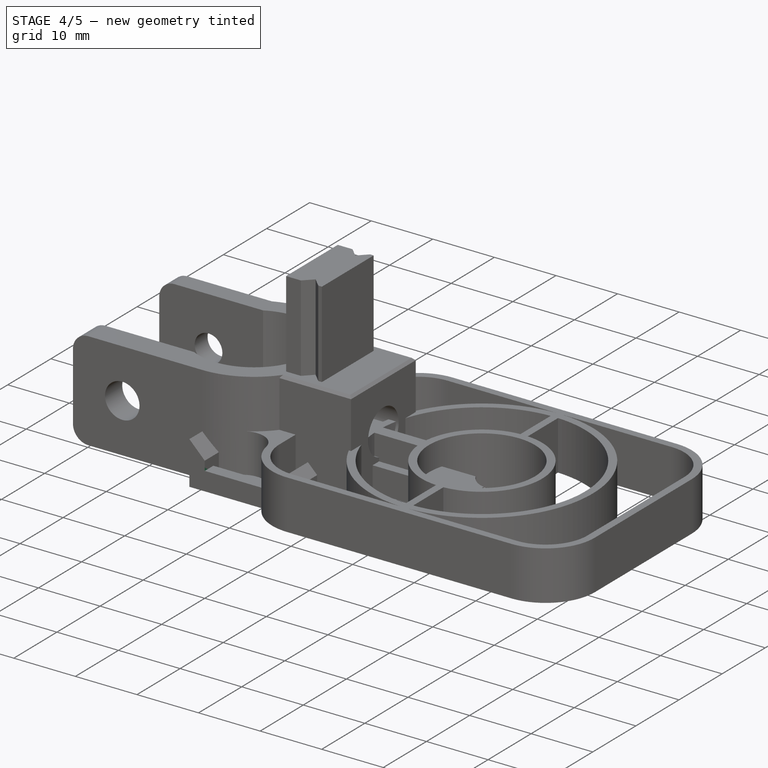
[diagram: stage 4 of 5 — iso view after this stage's code; geometry added in this stage tinted green]
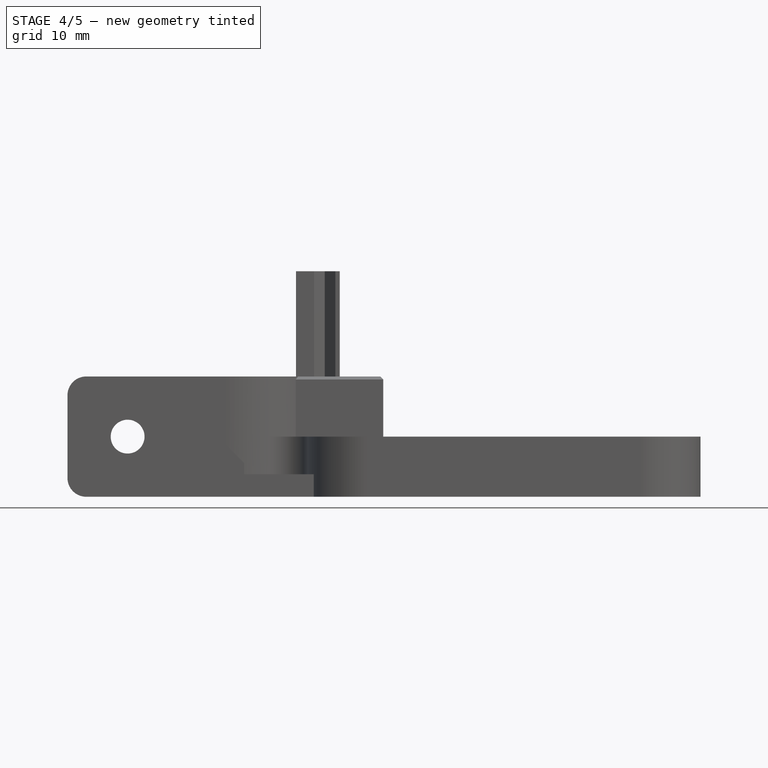
[diagram: stage 4 of 5 — front view after this stage's code; geometry added in this stage tinted green]
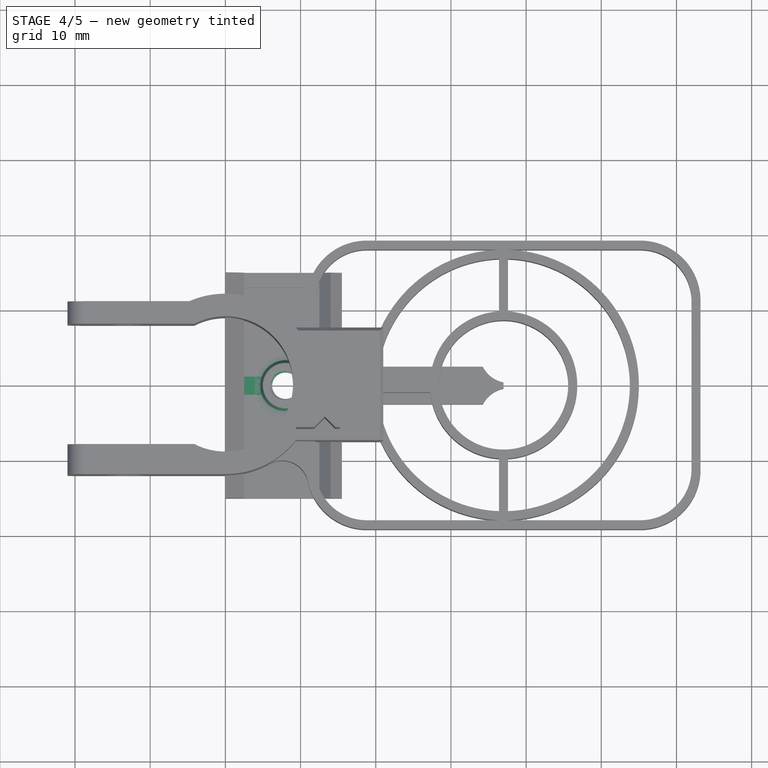
[diagram: stage 4 of 5 — top view after this stage's code; geometry added in this stage tinted green]
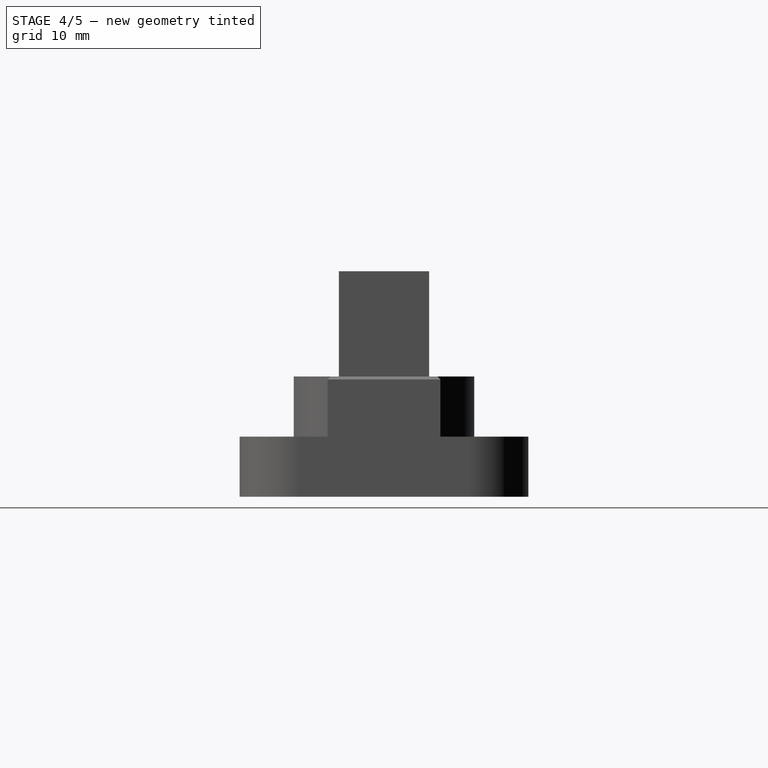
[diagram: stage 4 of 5 — right view after this stage's code; geometry added in this stage tinted green]
FEATURE [Sketcher::SketchObject] Sketch
  FullyConstrained = true
  MapMode = 5
  Placement = pos=(0,0,0) rot=(1,0,0;1.5708rad)
  Support = -> [XZ_Plane]
  sketch-geometry (8):
    g0: LineSegment StartX=0 StartY=6 StartZ=0 EndX=0 EndY=0 EndZ=0
    g1: LineSegment StartX=0 StartY=0 StartZ=0 EndX=15.5 EndY=0 EndZ=0
    g2: LineSegment StartX=15.5 StartY=0 StartZ=0 EndX=15.5 EndY=2 EndZ=0
    g3: LineSegment StartX=15.5 StartY=2 StartZ=0 EndX=14 EndY=3.5 EndZ=0
    g4: LineSegment StartX=14 StartY=3.5 StartZ=0 EndX=12.5 EndY=2 EndZ=0
    g5: LineSegment StartX=12.5 StartY=2 StartZ=0 EndX=2.5 EndY=2 EndZ=0
    g6: LineSegment StartX=2.5 StartY=2 StartZ=0 EndX=2.5 EndY=3.5 EndZ=0
    g7: LineSegment StartX=2.5 StartY=3.5 StartZ=0 EndX=0 EndY=6 EndZ=0
  constraints (23):
    c: PointOnObject(g0,g-2)
    c: Coincident(g0,g-1)
    c: Coincident(g1,g0)
    c: Horizontal(g1)
    c: Coincident(g2,g1)
    c: Vertical(g2)
    c: Coincident(g3,g2)
    c: Coincident(g4,g3)
    c: Coincident(g5,g4)
    c: Horizontal(g5)
    c: Coincident(g6,g5)
    c: Vertical(g6)
    c: Coincident(g7,g6)
    c: Coincident(g7,g0)
    c: DistanceX(g3) = 14
    c: DistanceY(g2,g2) = 2
    c: Perpendicular(g3,g4)
    c: Angle(g3,g2) = 2.35619
    c: DistanceY(g2,g3) = 1.5
    c: PointOnObject(g2,g5)
    c: DistanceX(g5) = 2.5
    c: Angle(g0,g7) = 0.785398
    c: DistanceY(g6,g6) = 1.5
FEATURE [PartDesign::Pad] Pad
  Direction = (0,-1,2e-16)
  Length = 30
  Length2 = 10
  Midplane = true
  Placement = pos=(0,0,0) rot=(1,0,0;1.5708rad)
  Profile = -> Sketch
  ReferenceAxis = -> Sketch [N_Axis]
  Type = 0
FEATURE [Sketcher::SketchObject] Sketch001
  FullyConstrained = true
  MapMode = 5
  Support = -> [XY_Plane]
  sketch-geometry (1):
    g0: Circle CenterX=8 CenterY=0 CenterZ=0 NormalX=0 NormalY=0 NormalZ=1 AngleXU=0 Radius=2
  constraints (3):
    c: PointOnObject(g0,g-1)
    c: DistanceX(g0) = 8
    c: Diameter(g0) = 4
FEATURE [PartDesign::Hole] Hole
  BaseFeature = -> Pad
  CustomThreadClearance = 0
  Depth = 69.2789
  DepthType = 1
  Diameter = 4.5
  DrillForDepth = false
  DrillPoint = 1
  DrillPointAngle = 118
  HoleCutCountersinkAngle = 90
  HoleCutCustomValues = false
  HoleCutDepth = 0
  HoleCutDiameter = 6.1
  HoleCutType = 0
  ModelThread = false
  Placement = pos=(0,0,0) rot=(1,0,0;1.5708rad)
  Profile = -> Sketch001
  Reversed = true
  Tapered = false
  TaperedAngle = 90
  ThreadClass = 0
  ThreadDepth = 69.2789
  ThreadDepthType = 0
  ThreadDirection = 0
  ThreadFit = 0
  ThreadSize = 11
  ThreadType = 1
  Threaded = false
  UseCustomThreadClearance = false
FEATURE [PartDesign::Chamfer] Chamfer
  Angle = 45
  Base = -> Pocket [Edge41]
  BaseFeature = -> Pocket
  ChamferType = 1
  FlipDirection = false
  Placement = pos=(0,0,0) rot=(1,0,0;1.5708rad)
  Size = 1.2
  Size2 = 0.5
  SupportTransform = false
  UseAllEdges = false
FEATURE [PartDesign::Hole] Hole001
  BaseFeature = -> Chamfer
  CustomThreadClearance = 0.25
  Depth = 69.6607
  DepthType = 1
  Diameter = 3.55
  DrillForDepth = false
  DrillPoint = 1
  DrillPointAngle = 118
  HoleCutCountersinkAngle = 90
  HoleCutCustomValues = false
  HoleCutDepth = 0
  HoleCutDiameter = 6.1
  HoleCutType = 0
  ModelThread = true
  Placement = pos=(0,0,0) rot=(1,0,0;1.5708rad)
  Profile = -> Sketch003
  Tapered = false
  TaperedAngle = 90
  ThreadClass = 0
  ThreadDepth = 69.6607
  ThreadDepthType = 0
  ThreadDirection = 0
  ThreadFit = 0
  ThreadSize = 11
  ThreadType = 1
  Threaded = true
  UseCustomThreadClearance = true
FEATURE [PartDesign::Body] Body002  label="M4ScrewCover"
  Group = -> [Sketch008,Revolution002,Sketch009,Pocket006,Sketch010,Pocket007,Sketch011,Sketch012,Pocket008,Pocket009,Fillet002,Chamfer002]
  Origin = -> Origin002
  Placement = pos=(-10,0,0) rot=(0,0,1;0rad)
  Tip = -> Chamfer002
FEATURE [Sketcher::SketchObject] Sketch013
  ExternalGeometry = -> [Hole]
  FullyConstrained = true
  MapMode = 5
  Placement = pos=(0,9e-16,2) rot=(0,0,1;3.14159rad)
  Support = -> [Hole]
  sketch-geometry (17):
    g0: LineSegment StartX=-12.5 StartY=13 StartZ=0 EndX=-2.5 EndY=13 EndZ=0
    g1: LineSegment StartX=-2.5 StartY=13 StartZ=0 EndX=-2.5 EndY=1.2 EndZ=0
    g2: LineSegment StartX=-12.5 StartY=2.19374 StartZ=0 EndX=-12.5 EndY=13 EndZ=0
    g3: LineSegment StartX=-12.5 StartY=-13 StartZ=0 EndX=-2.5 EndY=-13 EndZ=0
    g4: LineSegment StartX=-2.5 StartY=-13 StartZ=0 EndX=-2.5 EndY=-1.2 EndZ=0
    g5: LineSegment StartX=-12.5 StartY=-2.19374 StartZ=0 EndX=-12.5 EndY=-13 EndZ=0
    g6: LineSegment StartX=-2.5 StartY=-1.2 StartZ=0 EndX=-3.92293 EndY=-1.2 EndZ=0
    g7: LineSegment StartX=-2.5 StartY=1.2 StartZ=0 EndX=-3.92293 EndY=1.2 EndZ=0
    g8: ArcOfCircle CenterX=-8 CenterY=4e-16 CenterZ=0 NormalX=0 NormalY=0 NormalZ=1 AngleXU=0 Radius=4.25 StartAngle=0.286246 EndAngle=2.65029
    g9: ArcOfCircle CenterX=-8 CenterY=4e-16 CenterZ=0 NormalX=0 NormalY=0 NormalZ=1 AngleXU=0 Radius=4.25 StartAngle=3.63289 EndAngle=5.99694
    g10: LineSegment StartX=-11.7473 StartY=2.00503 StartZ=0 EndX=-8 EndY=4e-16 EndZ=0
    g11: LineSegment StartX=-8 StartY=4e-16 StartZ=0 EndX=-3.92293 EndY=-1.2 EndZ=0
    g12: GeomPoint X=-9.98387 Y=1.06149 Z=0
    g13: GeomPoint X=-5.84155 Y=-0.635294 Z=0
    g14: LineSegment StartX=-3.92293 StartY=1.2 StartZ=0 EndX=-3.92293 EndY=-1.2 EndZ=0
    g15: ArcOfCircle CenterX=-12.1 CenterY=2.19374 CenterZ=0 NormalX=0 NormalY=0 NormalZ=1 AngleXU=0 Radius=0.4 StartAngle=3.14159 EndAngle=5.79189
    g16: ArcOfCircle CenterX=-12.1 CenterY=-2.19374 CenterZ=0 NormalX=0 NormalY=0 NormalZ=1 AngleXU=0 Radius=0.4 StartAngle=0.4913 EndAngle=3.14159
  constraints (44):
    c: Coincident(g0,g1)
    c: Coincident(g1,g7)
    c: Coincident(g2,g0)
    c: Horizontal(g0)
    c: Vertical(g1)
    c: Vertical(g2)
    c: Coincident(g3,g4)
    c: Coincident(g4,g6)
    c: Coincident(g5,g3)
    c: Horizontal(g3)
    c: Vertical(g4)
    c: Vertical(g5)
    c: Horizontal(g6)
    c: Horizontal(g7)
    c: Coincident(g8,g-5)
    c: Coincident(g8,g7)
    c: Coincident(g9,g8)
    c: Coincident(g9,g6)
    c: Coincident(g10,g8)
    c: Coincident(g11,g8)
    c: Coincident(g11,g6)
    c: PointOnObject(g12,g10)
    c: PointOnObject(g13,g11)
    c: PointOnObject(g13,g-5)
    c: PointOnObject(g12,g-5)
    c: PointOnObject(g-3,g2)
    c: PointOnObject(g-3,g1)
    c: PointOnObject(g-4,g5)
    c: PointOnObject(g-4,g4)
    c: DistanceY(g-4,g3) = 2
    c: DistanceY(g0,g-3) = 2
    c: Distance(g8,g12) = 2
    c: Distance(g13,g6) = 2
    c: DistanceY(g4,g1) = 2.4
    c: Coincident(g14,g7)
    c: Coincident(g14,g6)
    c: Vertical(g14)
    c: Tangent(g16,g5) = -1.5708
    c: Tangent(g15,g2) = 1.5708
    c: Equal(g15,g16)
    c: Diameter(g15) = 0.8
    c: Tangent(g16,g9) = 1.5708
    c: Tangent(g15,g8) = 1.5708
    c: Coincident(g10,g8)
FEATURE [PartDesign::Pocket] Pocket010
  BaseFeature = -> Hole
  Direction = (0,-2e-16,-1)
  Length = 0.4
  Length2 = 5
  Placement = pos=(0,0,0) rot=(1,0,0;1.5708rad)
  Profile = -> Sketch013
  ReferenceAxis = -> Sketch013 [N_Axis]
  Type = 0
FEATURE [PartDesign::Chamfer] Chamfer004
  Angle = 45
  Base = -> Pocket010 [Face3]
  BaseFeature = -> Pocket010
  ChamferType = 0
  FlipDirection = false
  Placement = pos=(0,0,0) rot=(1,0,0;1.5708rad)
  Size = 0.4
  Size2 = 1
  SupportTransform = false
  UseAllEdges = false
FEATURE [PartDesign::Body] Body  label="ClampOpen"
  Group = -> [Sketch,Pad,Sketch001,Hole,Sketch013,Pocket010,Chamfer004]
  Origin = -> Origin
  Tip = -> Chamfer004
FEATURE [Sketcher::SketchObject] Sketch014
  AttachmentOffset = pos=(0,0,2) rot=(0,0,1;0rad)
  ExternalGeometry = -> [Hole001]
  FullyConstrained = true
  MapMode = 5
  Placement = pos=(0,0,2) rot=(0,0,1;0rad)
  Support = -> [XY_Plane001]
  sketch-geometry (8):
    g0: LineSegment StartX=2.5 StartY=1.2 StartZ=0 EndX=5.25045 EndY=1.2 EndZ=0
    g1: LineSegment StartX=5.25045 StartY=1.2 StartZ=0 EndX=5.25045 EndY=-1.2 EndZ=0
    g2: LineSegment StartX=5.25045 StartY=-1.2 StartZ=0 EndX=2.5 EndY=-1.2 EndZ=0
    g3: LineSegment StartX=2.5 StartY=-1.2 StartZ=0 EndX=2.5 EndY=1.2 EndZ=0
    g4: LineSegment StartX=10.7495 StartY=1.2 StartZ=0 EndX=12.5 EndY=1.2 EndZ=0
    g5: LineSegment StartX=12.5 StartY=1.2 StartZ=0 EndX=12.5 EndY=-1.2 EndZ=0
    g6: LineSegment StartX=12.5 StartY=-1.2 StartZ=0 EndX=10.7495 EndY=-1.2 EndZ=0
    g7: LineSegment StartX=10.7495 StartY=-1.2 StartZ=0 EndX=10.7495 EndY=1.2 EndZ=0
  constraints (24):
    c: Coincident(g0,g1)
    c: Coincident(g1,g2)
    c: Coincident(g2,g3)
    c: Coincident(g3,g0)
    c: Horizontal(g0)
    c: Horizontal(g2)
    c: Vertical(g1)
    c: Vertical(g3)
    c: PointOnObject(g0,g-3)
    c: Coincident(g4,g5)
    c: Coincident(g5,g6)
    c: Coincident(g6,g7)
    c: Coincident(g7,g4)
    c: Horizontal(g4)
    c: Horizontal(g6)
    c: Vertical(g5)
    c: Vertical(g7)
    c: PointOnObject(g5,g-4)
    c: Equal(g3,g5)
    c: DistanceY(g5,g5) = 2.4
    c: PointOnObject(g0,g-5)
    c: PointOnObject(g1,g-5)
    c: PointOnObject(g4,g-5)
    c: PointOnObject(g6,g-5)
FEATURE [PartDesign::Pad] Pad002
  BaseFeature = -> Hole001
  Direction = (0,0,1)
  Length = 1
  Length2 = 10
  Placement = pos=(0,0,0) rot=(1,0,0;1.5708rad)
  Profile = -> Sketch014
  ReferenceAxis = -> Sketch014 [N_Axis]
  Reversed = true
  Type = 0
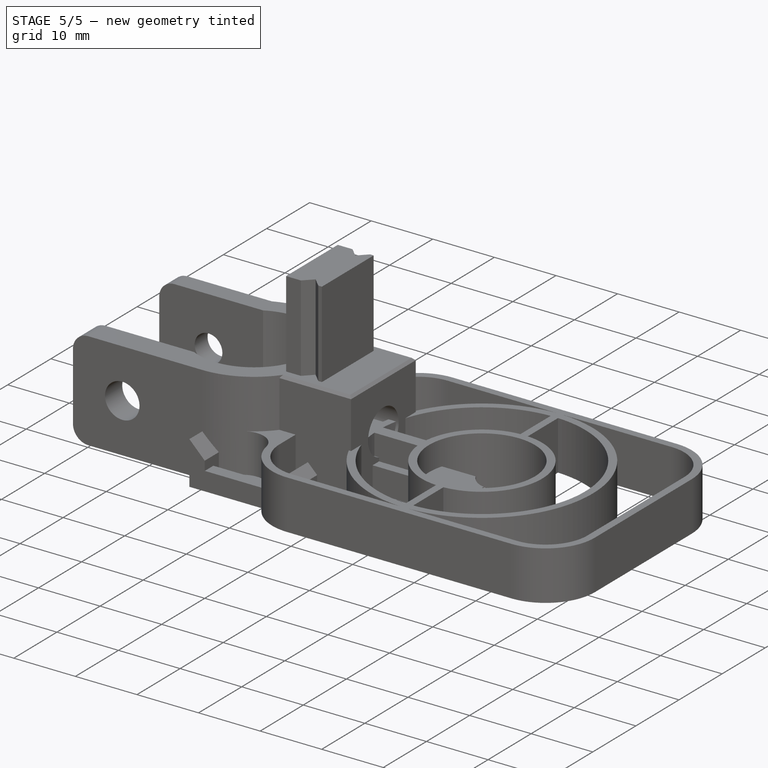
[diagram: stage 5 of 5 — iso view after this stage's code; geometry added in this stage tinted green]
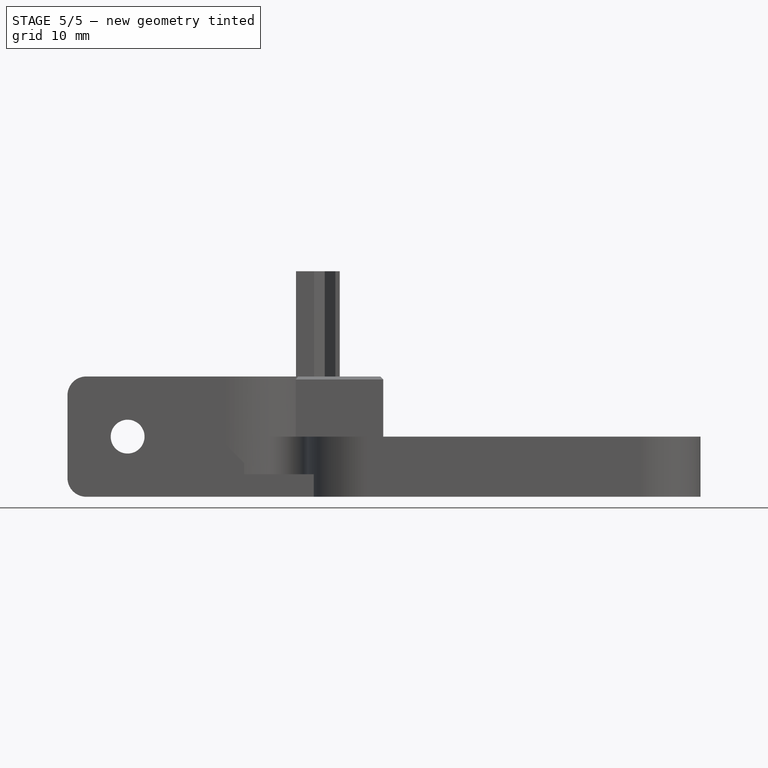
[diagram: stage 5 of 5 — front view after this stage's code; geometry added in this stage tinted green]
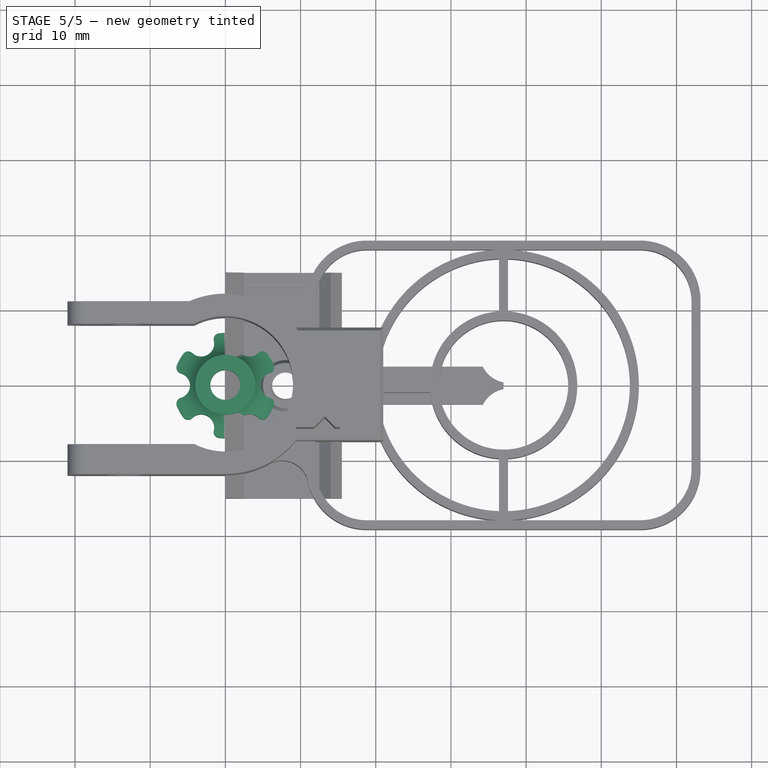
[diagram: stage 5 of 5 — top view after this stage's code; geometry added in this stage tinted green]
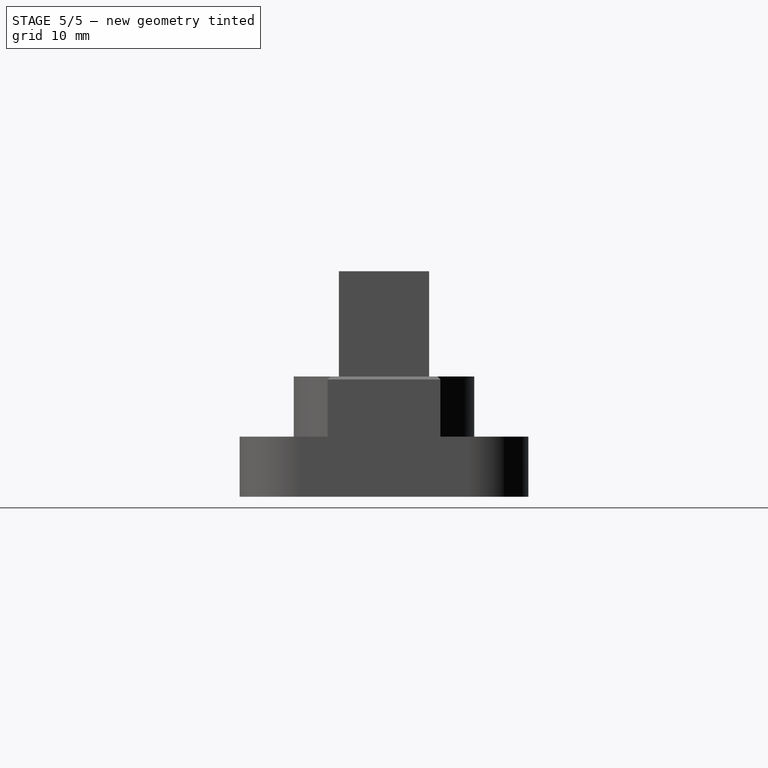
[diagram: stage 5 of 5 — right view after this stage's code; geometry added in this stage tinted green]
FEATURE [Sketcher::SketchObject] Sketch008
  FullyConstrained = true
  MapMode = 5
  Placement = pos=(0,0,0) rot=(1,0,0;1.5708rad)
  Support = -> [XZ_Plane002]
  sketch-geometry (8):
    g0: LineSegment StartX=2 StartY=9 StartZ=0 EndX=4 EndY=9 EndZ=0
    g1: LineSegment StartX=4 StartY=9 StartZ=0 EndX=4 EndY=7.5 EndZ=0
    g2: LineSegment StartX=4 StartY=7.5 StartZ=0 EndX=3.6 EndY=7.26906 EndZ=0
    g3: LineSegment StartX=3.6 StartY=7.26906 StartZ=0 EndX=3.6 EndY=6.66906 EndZ=0
    g4: ArcOfCircle CenterX=7 CenterY=7.50009 CenterZ=0 NormalX=0 NormalY=0 NormalZ=1 AngleXU=0 Radius=3.50009 StartAngle=3.38131 EndAngle=4.71239
    g5: LineSegment StartX=7 StartY=4 StartZ=0 EndX=7 EndY=0 EndZ=0
    g6: LineSegment StartX=7 StartY=0 StartZ=0 EndX=2 EndY=0 EndZ=0
    g7: LineSegment StartX=2 StartY=0 StartZ=0 EndX=2 EndY=9 EndZ=0
  constraints (25):
    c: Horizontal(g0)
    c: Coincident(g1,g0)
    c: Vertical(g1)
    c: Coincident(g2,g1)
    c: Coincident(g3,g2)
    c: Coincident(g5,g4)
    c: Vertical(g5)
    c: Coincident(g6,g5)
    c: Horizontal(g6)
    c: Coincident(g7,g0)
    c: Vertical(g7)
    c: DistanceX(g0) = 4
    c: DistanceY(g0) = 9
    c: DistanceY(g1,g1) = 1.5
    c: Angle(g1,g2) = 2.0944
    c: DistanceX(g5) = 7
    c: DistanceY(g4) = 4
    c: Coincident(g6,g7)
    c: PointOnObject(g6,g-1)
    c: DistanceX(g-1,g6) = 2
    c: DistanceX(g2) = 3.6
    c: PointOnObject(g4,g5)
    c: Coincident(g4,g3)
    c: Vertical(g3)
    c: DistanceY(g3,g3) = 0.6
FEATURE [PartDesign::Revolution] Revolution002
  Angle = 360
  Axis = (1e-16,1e-16,1)
  Base = (0,0,0)
  Placement = pos=(0,0,0) rot=(1,0,0;1.5708rad)
  Profile = -> Sketch008
  ReferenceAxis = -> Z_Axis002
  Reversed = true
FEATURE [Sketcher::SketchObject] Sketch009
  FullyConstrained = true
  MapMode = 5
  Support = -> [XY_Plane002]
  sketch-geometry (10):
    g0: LineSegment StartX=0 StartY=4.18579 StartZ=0 EndX=3.625 EndY=2.09289 EndZ=0
    g1: LineSegment StartX=0 StartY=4.18579 StartZ=0 EndX=-3.625 EndY=2.09289 EndZ=0
    g2: LineSegment StartX=-3.625 StartY=2.09289 StartZ=0 EndX=-3.625 EndY=-2.09289 EndZ=0
    g3: LineSegment StartX=3.625 StartY=2.09289 StartZ=0 EndX=3.625 EndY=-2.09289 EndZ=0
    g4: LineSegment StartX=3.625 StartY=-2.09289 StartZ=0 EndX=4e-16 EndY=-4.18579 EndZ=0
    g5: LineSegment StartX=4e-16 StartY=-4.18579 StartZ=0 EndX=-3.625 EndY=-2.09289 EndZ=0
    g6: LineSegment StartX=-3.625 StartY=2.09289 StartZ=0 EndX=4e-16 EndY=-4.18579 EndZ=0
    g7: LineSegment StartX=4e-16 StartY=-4.18579 StartZ=0 EndX=3.625 EndY=2.09289 EndZ=0
    g8: LineSegment StartX=3.625 StartY=2.09289 StartZ=0 EndX=-3.625 EndY=2.09289 EndZ=0
    g9: Circle CenterX=0 CenterY=0 CenterZ=0 NormalX=0 NormalY=0 NormalZ=1 AngleXU=0 Radius=3.5
  constraints (25):
    c: PointOnObject(g0,g-2)
    c: Coincident(g1,g0)
    c: Coincident(g2,g1)
    c: Coincident(g3,g0)
    c: Vertical(g3)
    c: Coincident(g4,g3)
    c: PointOnObject(g4,g-2)
    c: Coincident(g5,g4)
    c: Coincident(g5,g2)
    c: Equal(g2,g1)
    c: Equal(g1,g0)
    c: Equal(g0,g3)
    c: Equal(g3,g4)
    c: Equal(g4,g5)
    c: Symmetric(g1,g2,g-1)
    c: Coincident(g6,g1)
    c: Coincident(g6,g4)
    c: Coincident(g7,g4)
    c: Coincident(g7,g0)
    c: Coincident(g8,g0)
    c: Coincident(g8,g1)
    c: Equal(g8,g6)
    c: DistanceX(g2,g3) = 7.25
    c: Coincident(g9,g-1)
    c: Diameter(g9) = 7
FEATURE [PartDesign::Pocket] Pocket006
  BaseFeature = -> Revolution002
  Direction = (0,0,-1)
  Length = 4
  Length2 = 5
  Placement = pos=(0,0,0) rot=(1,0,0;1.5708rad)
  Profile = -> Sketch009
  ReferenceAxis = -> Sketch009 [N_Axis]
  Reversed = true
  Type = 0
FEATURE [Sketcher::SketchObject] Sketch010
  ExternalGeometry = -> [Pocket006]
  FullyConstrained = true
  MapMode = 5
  Placement = pos=(0,0,4) rot=(1,0,0;3.14159rad)
  Support = -> [Pocket006]
  sketch-geometry (6):
    g0: LineSegment StartX=-2 StartY=2.87228 StartZ=0 EndX=-2 EndY=-2.87228 EndZ=0
    g1: LineSegment StartX=2 StartY=-2.87228 StartZ=0 EndX=2 EndY=2.87228 EndZ=0
    g2: GeomPoint X=2 Y=0 Z=0
    g3: GeomPoint X=-2 Y=0 Z=0
    g4: ArcOfCircle CenterX=0 CenterY=0 CenterZ=0 NormalX=0 NormalY=0 NormalZ=1 AngleXU=0 Radius=3.5 StartAngle=0.962551 EndAngle=2.17904
    g5: ArcOfCircle CenterX=0 CenterY=0 CenterZ=0 NormalX=0 NormalY=0 NormalZ=1 AngleXU=0 Radius=3.5 StartAngle=4.10414 EndAngle=5.32063
  constraints (16):
    c: PointOnObject(g0,g-4)
    c: Vertical(g0)
    c: PointOnObject(g1,g-4)
    c: Vertical(g1)
    c: PointOnObject(g2,g1)
    c: PointOnObject(g3,g0)
    c: PointOnObject(g3,g-1)
    c: PointOnObject(g2,g-1)
    c: PointOnObject(g2,g-3)
    c: PointOnObject(g3,g-3)
    c: Coincident(g4,g-4)
    c: Coincident(g4,g0)
    c: Coincident(g5,g4)
    c: Coincident(g5,g1)
    c: Coincident(g0,g5)
    c: Coincident(g4,g1)
FEATURE [PartDesign::Pocket] Pocket007
  BaseFeature = -> Pocket006
  Direction = (0,1e-16,1)
  Length = 0.2
  Length2 = 5
  Placement = pos=(0,0,0) rot=(1,0,0;1.5708rad)
  Profile = -> Sketch010
  ReferenceAxis = -> Sketch010 [N_Axis]
  Type = 0
FEATURE [Sketcher::SketchObject] Sketch011
  ExternalGeometry = -> [Pocket006]
  FullyConstrained = true
  MapMode = 5
  Support = -> [XY_Plane002]
  sketch-geometry (15):
    g0: Circle CenterX=0 CenterY=0 CenterZ=0 NormalX=0 NormalY=0 NormalZ=1 AngleXU=0 Radius=6.42032
    g1: Circle CenterX=-3.21016 CenterY=5.56016 CenterZ=0 NormalX=0 NormalY=0 NormalZ=1 AngleXU=0 Radius=1.72032
    g2: Circle CenterX=3.21016 CenterY=5.56016 CenterZ=0 NormalX=0 NormalY=0 NormalZ=1 AngleXU=0 Radius=1.72032
    g3: Circle CenterX=6.42032 CenterY=0 CenterZ=0 NormalX=0 NormalY=0 NormalZ=1 AngleXU=0 Radius=1.72032
    g4: Circle CenterX=3.21016 CenterY=-5.56016 CenterZ=0 NormalX=0 NormalY=0 NormalZ=1 AngleXU=0 Radius=1.72032
    g5: Circle CenterX=-3.21016 CenterY=-5.56016 CenterZ=0 NormalX=0 NormalY=0 NormalZ=1 AngleXU=0 Radius=1.72032
    g6: Circle CenterX=-6.42032 CenterY=0 CenterZ=0 NormalX=0 NormalY=0 NormalZ=1 AngleXU=0 Radius=1.72032
    g7: LineSegment StartX=3.21016 StartY=-5.56016 StartZ=0 EndX=-3.21016 EndY=5.56016 EndZ=0
    g8: LineSegment StartX=3.21016 StartY=5.56016 StartZ=0 EndX=-3.21016 EndY=-5.56016 EndZ=0
    g9: GeomPoint X=2.35 Y=4.07032 Z=0
    g10: GeomPoint X=1.75 Y=3.03109 Z=0
    g11: LineSegment StartX=-3.21016 StartY=5.56016 StartZ=0 EndX=-3.21016 EndY=-5.56016 EndZ=0
    g12: LineSegment StartX=-3.21016 StartY=-5.56016 StartZ=0 EndX=6.42032 EndY=0 EndZ=0
    g13: LineSegment StartX=-1.72032 StartY=6.42032 StartZ=0 EndX=1.72032 EndY=6.42032 EndZ=0
    g14: LineSegment StartX=1.72032 StartY=6.42032 StartZ=0 EndX=4.7 EndY=4.7 EndZ=0
  constraints (39):
    c: Coincident(g0,g-1)
    c: PointOnObject(g6,g-1)
    c: PointOnObject(g3,g-1)
    c: Coincident(g7,g4)
    c: Coincident(g7,g1)
    c: Coincident(g8,g2)
    c: Coincident(g8,g5)
    c: Equal(g2,g1)
    c: Equal(g1,g6)
    c: Equal(g6,g5)
    c: Equal(g5,g3)
    c: Equal(g3,g4)
    c: PointOnObject(g9,g2)
    c: PointOnObject(g10,g8)
    c: PointOnObject(g9,g8)
    c: PointOnObject(g2,g0)
    c: PointOnObject(g1,g0)
    c: PointOnObject(g6,g0)
    c: PointOnObject(g5,g0)
    c: PointOnObject(g4,g0)
    c: PointOnObject(g3,g0)
    c: PointOnObject(g0,g8)
    c: PointOnObject(g0,g7)
    c: Coincident(g11,g1)
    c: Coincident(g11,g5)
    c: Vertical(g11)
    c: Coincident(g12,g5)
    c: Coincident(g12,g3)
    c: Equal(g12,g11)
    c: PointOnObject(g10,g-4)
    c: Distance(g10,g9) = 1.2
    c: PointOnObject(g13,g1)
    c: PointOnObject(g13,g2)
    c: Horizontal(g13)
    c: Coincident(g14,g13)
    c: PointOnObject(g14,g2)
    c: Perpendicular(g8,g14)
    c: Equal(g13,g14)
    c: PointOnObject(g2,g14)
FEATURE [Sketcher::SketchObject] Sketch012
  AttachmentOffset = pos=(0,0,4) rot=(0,0,1;0rad)
  ExternalGeometry = -> [Revolution002]
  FullyConstrained = true
  MapMode = 5
  Placement = pos=(0,0,4) rot=(0,0,1;0rad)
  Support = -> [XY_Plane002]
  sketch-geometry (8):
    g0: LineSegment StartX=-2 StartY=2 StartZ=0 EndX=2 EndY=2 EndZ=0
    g1: LineSegment StartX=2 StartY=2 StartZ=0 EndX=2 EndY=-2 EndZ=0
    g2: LineSegment StartX=2 StartY=-2 StartZ=0 EndX=-2 EndY=-2 EndZ=0
    g3: LineSegment StartX=-2 StartY=-2 StartZ=0 EndX=-2 EndY=2 EndZ=0
    g4: GeomPoint X=0 Y=-2 Z=0
    g5: GeomPoint X=2 Y=0 Z=0
    g6: GeomPoint X=0 Y=2 Z=0
    g7: GeomPoint X=-2 Y=0 Z=0
  constraints (20):
    c: Coincident(g0,g1)
    c: Coincident(g1,g2)
    c: Coincident(g2,g3)
    c: Coincident(g3,g0)
    c: Horizontal(g0)
    c: Horizontal(g2)
    c: Vertical(g1)
    c: Vertical(g3)
    c: Equal(g2,g1)
    c: PointOnObject(g4,g-3)
    c: PointOnObject(g5,g1)
    c: PointOnObject(g6,g0)
    c: PointOnObject(g7,g3)
    c: PointOnObject(g7,g-1)
    c: PointOnObject(g5,g-1)
    c: PointOnObject(g6,g-2)
    c: PointOnObject(g4,g-2)
    c: PointOnObject(g4,g2)
    c: PointOnObject(g6,g-3)
    c: PointOnObject(g5,g-3)
FEATURE [PartDesign::Pocket] Pocket008
  BaseFeature = -> Pocket007
  Direction = (0,0,-1)
  Length = 0.4
  Length2 = 5
  Placement = pos=(0,0,0) rot=(1,0,0;1.5708rad)
  Profile = -> Sketch012
  ReferenceAxis = -> Sketch012 [N_Axis]
  Reversed = true
  Type = 0
FEATURE [PartDesign::Pocket] Pocket009
  BaseFeature = -> Pocket008
  Direction = (0,0,-1)
  Length = 5
  Length2 = 5
  Midplane = true
  Placement = pos=(0,0,0) rot=(1,0,0;1.5708rad)
  Profile = -> Sketch011
  ReferenceAxis = -> Sketch011 [N_Axis]
  Type = 1
FEATURE [PartDesign::Fillet] Fillet002
  Base = -> Pocket009 [Edge101,Edge98,Edge95,Edge92,Edge89,Edge88,Edge86,Edge107,Edge104,Edge110,Edge111,Edge84]
  BaseFeature = -> Pocket009
  Placement = pos=(0,0,0) rot=(1,0,0;1.5708rad)
  Radius = 0.8
  SupportTransform = false
  UseAllEdges = false
FEATURE [PartDesign::Chamfer] Chamfer002
  Angle = 45
  Base = -> Fillet002 [Edge51]
  BaseFeature = -> Fillet002
  ChamferType = 0
  FlipDirection = false
  Placement = pos=(0,0,0) rot=(1,0,0;1.5708rad)
  Size = 0.4
  Size2 = 1
  SupportTransform = false
  UseAllEdges = false
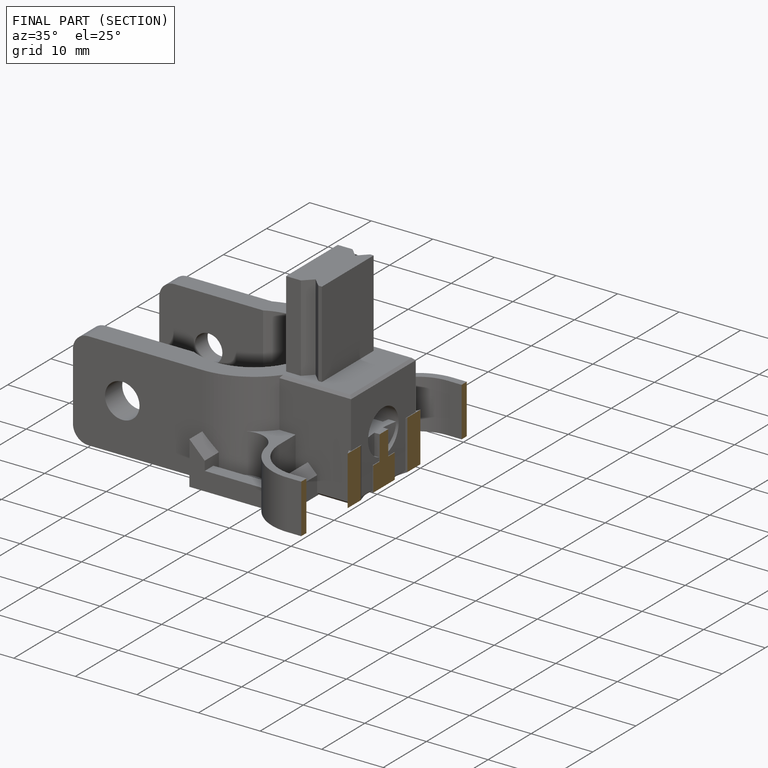
[diagram: finished part — half-section view (interior)]
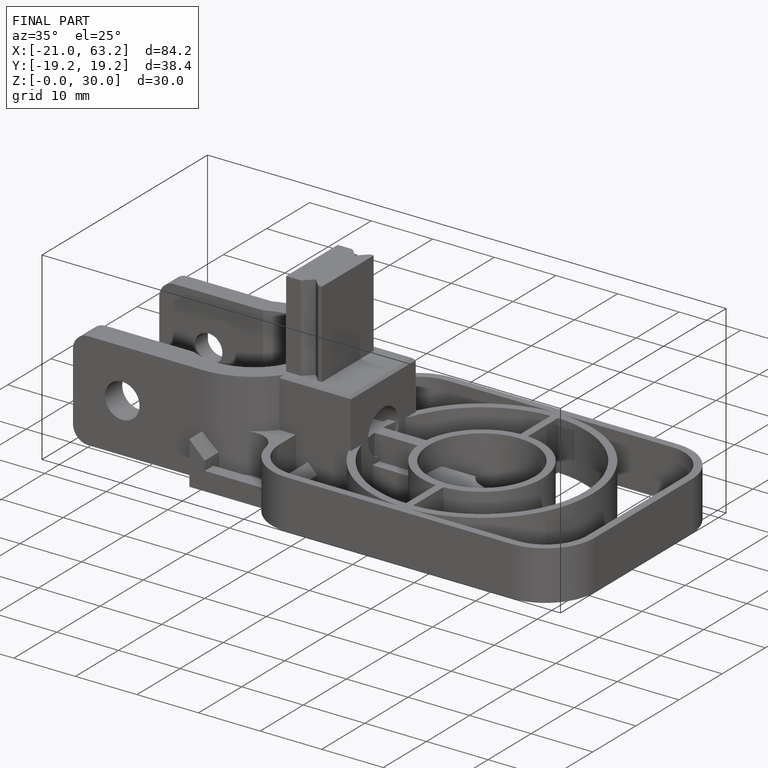
[diagram: finished part — iso view with bounding-box wireframe]
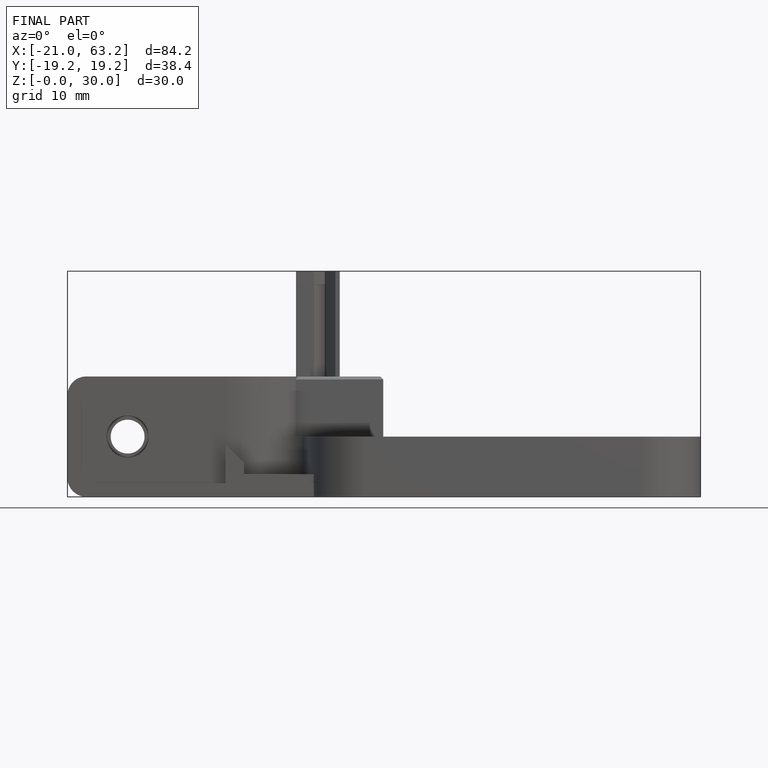
[diagram: finished part — front view with bounding-box wireframe]
